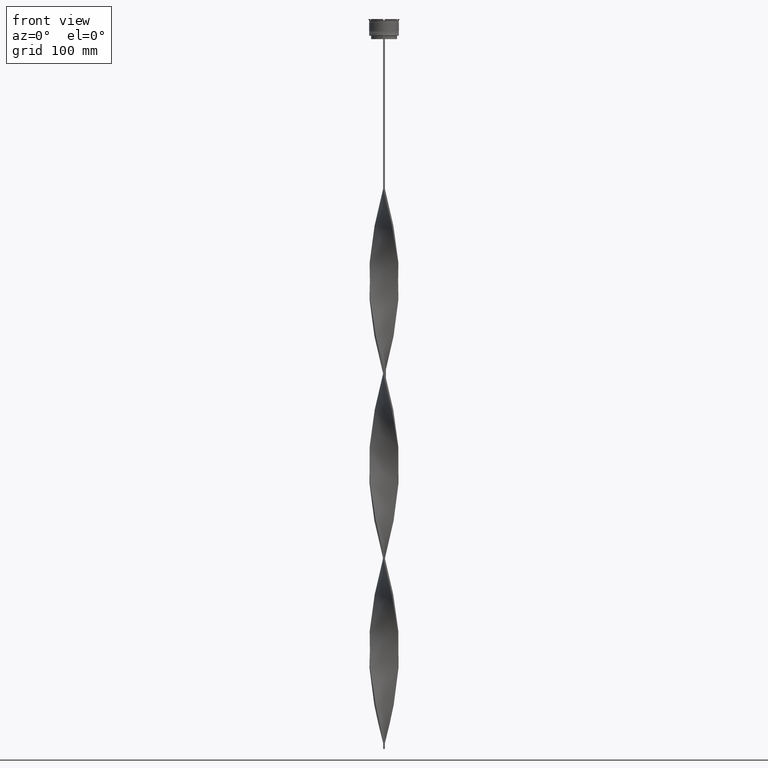
[diagram: clean part render]
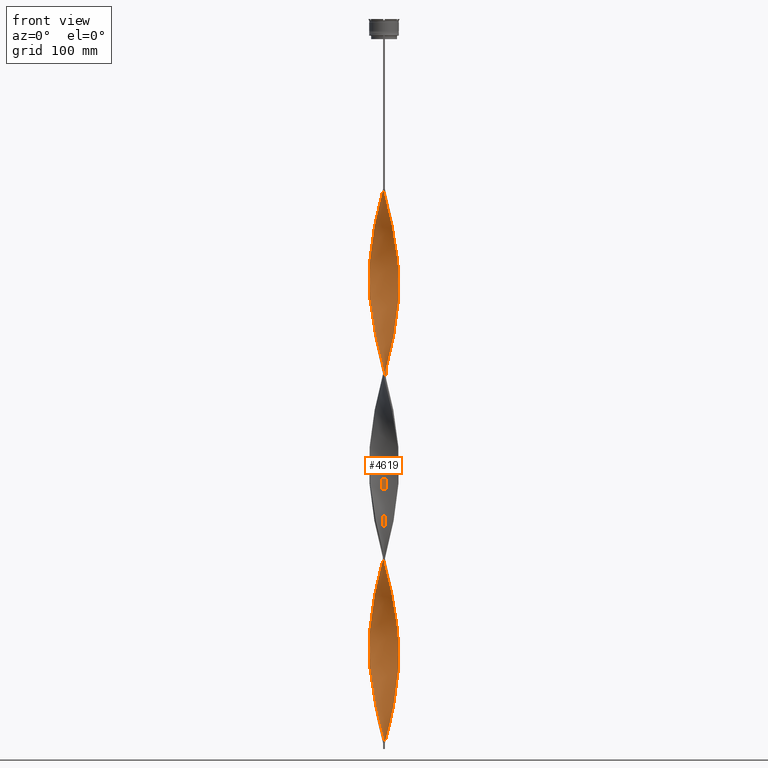
[diagram: same view with one face highlighted and labeled with its STEP entity id]
A machine part, front view. The second image highlights one B-rep face of the part: STEP entity #4619.
In plain terms, the highlighted face is a freeform B-spline surface patch.
Its self-contained STEP definition (entity closure, byte-faithful):
#1 = CARTESIAN_POINT ( 'NONE',  ( 10.57441756647771847, 6.753880147568762204, -562.4000000000000909 ) ) ;
#13 = CARTESIAN_POINT ( 'NONE',  ( -11.94434152831508911, -3.842643539664265084, -233.0933333333333906 ) ) ;
#14 = CARTESIAN_POINT ( 'NONE',  ( 12.41912662004790313, 1.605550994275044108, -540.6533333333334213 ) ) ;
#22 = CARTESIAN_POINT ( 'NONE',  ( 8.562581101809280781, 9.171445294657461389, -574.8266666666667106 ) ) ;
#31 = CARTESIAN_POINT ( 'NONE',  ( -12.33176776802354446, -2.315320201071886963, -226.8800000000000523 ) ) ;
#38 = CARTESIAN_POINT ( 'NONE',  ( 10.61346148680154933, 6.692356773673698633, -400.8533333333334099 ) ) ;
#40 = CARTESIAN_POINT ( 'NONE',  ( -1.536433340670622094, 12.45281399955976553, -146.1066666666667118 ) ) ;
#52 = CARTESIAN_POINT ( 'NONE',  ( 7.404526080593739401, -10.12947172560163800, -487.8400000000000887 ) ) ;
#60 = CARTESIAN_POINT ( 'NONE',  ( -10.57441756647771847, 6.753880147568762204, -189.6000000000000227 ) ) ;
#66 = CARTESIAN_POINT ( 'NONE',  ( -5.364690916238543217, -11.31514875612458226, -584.1466666666666470 ) ) ;
#67 = CARTESIAN_POINT ( 'NONE',  ( -7.954078399437124247, 9.671873490467490342, -174.0666666666666629 ) ) ;
#73 = CARTESIAN_POINT ( 'NONE',  ( 11.94434152831508911, -3.842643539664263752, -208.2400000000000659 ) ) ;
#80 = CARTESIAN_POINT ( 'NONE',  ( -5.364690916238543217, -11.31514875612458226, -273.4800000000000750 ) ) ;
#85 = CARTESIAN_POINT ( 'NONE',  ( -12.52013932661148665, 0.8242057753937841458, -525.1200000000001182 ) ) ;
#101 = CARTESIAN_POINT ( 'NONE',  ( -8.615698626491363754, -9.121564618826681681, -257.9466666666666583 ) ) ;
#106 = CARTESIAN_POINT ( 'NONE',  ( 0.03643334067062082432, 12.54718600044023979, -450.5600000000000023 ) ) ;
#115 = CARTESIAN_POINT ( 'NONE',  ( 4.652802097321417918, -11.65266650003840709, -164.7466666666667265 ) ) ;
#125 = CARTESIAN_POINT ( 'NONE',  ( 0.8225793935679449609, -12.49543369160420347, -149.2133333333333383 ) ) ;
#128 = CARTESIAN_POINT ( 'NONE',  ( 2.310751445539661830, -12.30743384125774575, -304.5466666666666811 ) ) ;
#137 = CARTESIAN_POINT ( 'NONE',  ( -10.10948352700888364, 7.389914939776779157, -497.1600000000000250 ) ) ;
#143 = CARTESIAN_POINT ( 'NONE',  ( 6.740552907874703514, -10.55355136890619860, -174.0666666666666629 ) ) ;
#153 = CARTESIAN_POINT ( 'NONE',  ( -7.954078399437124247, 9.671873490467490342, -484.7333333333333485 ) ) ;
#159 = CARTESIAN_POINT ( 'NONE',  ( -10.61346148680155110, -6.692356773673695081, -556.1866666666668380 ) ) ;
#165 = CARTESIAN_POINT ( 'NONE',  ( 10.99100368715144072, -6.000861433912922926, -198.9200000000000159 ) ) ;
#174 = CARTESIAN_POINT ( 'NONE',  ( 5.364690916238544105, 11.31514875612458226, -428.8133333333333894 ) ) ;
#175 = EDGE_CURVE ( 'NONE', #3188, #1463, #1265, .T. ) ;
#189 = CARTESIAN_POINT ( 'NONE',  ( -11.94434152831509088, 3.842643539664259755, -363.5733333333334372 ) ) ;
#201 = CARTESIAN_POINT ( 'NONE',  ( -12.52471466338928074, -0.7514828798033584834, -531.3333333333335986 ) ) ;
#221 = CARTESIAN_POINT ( 'NONE',  ( -8.562581101809284334, -9.171445294657461389, -419.4933333333333394 ) ) ;
#226 = CARTESIAN_POINT ( 'NONE',  ( 9.644549487540050592, 8.025949731984798774, -257.9466666666666583 ) ) ;
#241 = CARTESIAN_POINT ( 'NONE',  ( -8.615698626491365530, 9.121564618826679904, -338.7200000000000273 ) ) ;
#247 = CARTESIAN_POINT ( 'NONE',  ( -9.103565294674663022, -8.598697513321132746, -416.3866666666666561 ) ) ;
#261 = CARTESIAN_POINT ( 'NONE',  ( -5.364690916238544993, 11.31514875612458226, -323.1866666666667243 ) ) ;
#270 = CARTESIAN_POINT ( 'NONE',  ( -9.690996458280336512, 7.969804989054249056, -344.9333333333334508 ) ) ;
#279 = CARTESIAN_POINT ( 'NONE',  ( -6.679150936304338870, 10.59251824497200900, -167.8533333333333530 ) ) ;
#289 = CARTESIAN_POINT ( 'NONE',  ( -4.585052370405607647, -11.67949051451277320, -438.1333333333334394 ) ) ;
#295 = CARTESIAN_POINT ( 'NONE',  ( -12.41912662004790313, 1.605550994275040111, -522.0133333333334349 ) ) ;
#296 = CARTESIAN_POINT ( 'NONE',  ( -8.615698626491365530, 9.121564618826679904, -338.7200000000000273 ) ) ;
#300 = VERTEX_POINT ( 'NONE', #578 ) ;
#311 = CARTESIAN_POINT ( 'NONE',  ( -12.31811391348432316, 2.386896213156299407, -208.2400000000000659 ) ) ;
#312 = CARTESIAN_POINT ( 'NONE',  ( -4.585052370405615640, 11.67949051451277143, -158.5333333333333883 ) ) ;
#318 = CARTESIAN_POINT ( 'NONE',  ( 12.52013932661148488, -0.8242057753937777065, -369.7866666666666902 ) ) ;
#320 = CARTESIAN_POINT ( 'NONE',  ( 1.536433340670619208, 12.45281399955976553, -295.2266666666667447 ) ) ;
#334 = CARTESIAN_POINT ( 'NONE',  ( 12.11996919947063134, -3.149420042465480130, -360.4666666666666970 ) ) ;
#335 = CARTESIAN_POINT ( 'NONE',  ( -1.536433340670620762, -12.45281399955976553, -450.5600000000000023 ) ) ;
#342 = CARTESIAN_POINT ( 'NONE',  ( -3.085069550408702010, -12.16205368295573130, -444.3466666666668061 ) ) ;
#349 = CARTESIAN_POINT ( 'NONE',  ( -0.7499999999999997780, 12.50000000000000000, -143.0000000000000284 ) ) ;
#357 = CARTESIAN_POINT ( 'NONE',  ( -11.65644370790820794, -4.576004816908209705, -236.2000000000000171 ) ) ;
#358 = CARTESIAN_POINT ( 'NONE',  ( -2.310751445539655613, -12.30743384125774753, -447.4533333333333758 ) ) ;
#371 = CARTESIAN_POINT ( 'NONE',  ( 12.11996919947063134, 3.149420042465480130, -546.8666666666666742 ) ) ;
#380 = CARTESIAN_POINT ( 'NONE',  ( 0.7499999999999957812, 12.50000000000000000, -609.0000000000000000 ) ) ;
#383 = CARTESIAN_POINT ( 'NONE',  ( -0.8225793935679430735, -12.49543369160420347, -292.1200000000000614 ) ) ;
#385 = CARTESIAN_POINT ( 'NONE',  ( 11.36854588750133388, -5.309366094152150772, -512.6933333333333849 ) ) ;
#402 = CARTESIAN_POINT ( 'NONE',  ( -3.904224544142283815, -11.89829948811665261, -279.6933333333333280 ) ) ;
#407 = CARTESIAN_POINT ( 'NONE',  ( 2.310751445539661830, -12.30743384125774575, -304.5466666666666811 ) ) ;
#408 = CARTESIAN_POINT ( 'NONE',  ( 10.95596916500943685, 6.064588993110950454, -559.2933333333334076 ) ) ;
#416 = CARTESIAN_POINT ( 'NONE',  ( 6.076579735155671180, -10.97763101221075743, -481.6266666666667788 ) ) ;
#424 = CARTESIAN_POINT ( 'NONE',  ( -9.153347542385850133, -8.545684803940464036, -254.8400000000000034 ) ) ;
#431 = CARTESIAN_POINT ( 'NONE',  ( -6.012726175543712692, 11.01273480366649871, -475.4133333333333553 ) ) ;
#433 = CARTESIAN_POINT ( 'NONE',  ( -9.103565294674670128, 8.598697513321129193, -180.2800000000000296 ) ) ;
#443 = CARTESIAN_POINT ( 'NONE',  ( 12.42824121570641083, -1.533401540437619781, -528.2266666666666879 ) ) ;
#451 = CARTESIAN_POINT ( 'NONE',  ( -12.41912662004790313, 1.605550994275040111, -211.3466666666666924 ) ) ;
#457 = CARTESIAN_POINT ( 'NONE',  ( -10.57441756647771847, 6.753880147568762204, -500.2666666666666515 ) ) ;
#463 = CARTESIAN_POINT ( 'NONE',  ( 12.31811391348432316, 2.386896213156300295, -233.0933333333333906 ) ) ;
#470 = CARTESIAN_POINT ( 'NONE',  ( 6.679150936304339758, -10.59251824497200900, -323.1866666666667243 ) ) ;
#476 = CARTESIAN_POINT ( 'NONE',  ( -3.155646990963153264, -12.14393247619489813, -593.4666666666666970 ) ) ;
#492 = CARTESIAN_POINT ( 'NONE',  ( -12.31811391348432316, 2.386896213156299407, -208.2400000000000659 ) ) ;
#498 = CARTESIAN_POINT ( 'NONE',  ( -8.615698626491363754, -9.121564618826681681, -568.6133333333333439 ) ) ;
#506 = CARTESIAN_POINT ( 'NONE',  ( -0.7499999999999997780, -12.50000000000000000, -143.0000000000000284 ) ) ;
#518 = CARTESIAN_POINT ( 'NONE',  ( 4.652802097321417918, -11.65266650003840709, -164.7466666666666981 ) ) ;
#521 = CARTESIAN_POINT ( 'NONE',  ( 12.33176776802354624, 2.315320201071885187, -382.2133333333334235 ) ) ;
#530 = CARTESIAN_POINT ( 'NONE',  ( -7.345575697064967713, 10.17230168627752107, -481.6266666666667788 ) ) ;
#543 = CARTESIAN_POINT ( 'NONE',  ( 12.11996919947063134, 3.149420042465480130, -236.2000000000000171 ) ) ;
#546 = CARTESIAN_POINT ( 'NONE',  ( 8.615698626491365530, 9.121564618826679904, -413.2800000000000864 ) ) ;
#558 = CARTESIAN_POINT ( 'NONE',  ( -0.03643334067062192066, 12.54718600044023979, -301.4400000000000546 ) ) ;
#565 = CARTESIAN_POINT ( 'NONE',  ( 8.615698626491365530, -9.121564618826679904, -183.3866666666666845 ) ) ;
#568 = CARTESIAN_POINT ( 'NONE',  ( -12.31811391348432316, 2.386896213156299407, -518.9066666666666379 ) ) ;
#578 = CARTESIAN_POINT ( 'NONE',  ( 0.7500000000000037748, -12.50000000000000000, -609.0000000000000000 ) ) ;
#582 = CARTESIAN_POINT ( 'NONE',  ( 11.62967262449904915, 4.643620855213894671, -242.4133333333333553 ) ) ;
#590 = CARTESIAN_POINT ( 'NONE',  ( 5.364690916238544105, -11.31514875612458226, -167.8533333333333530 ) ) ;
#611 = CARTESIAN_POINT ( 'NONE',  ( 0.7499999999999957812, 12.50000000000000000, -298.3333333333333144 ) ) ;
#616 = CARTESIAN_POINT ( 'NONE',  ( 0.03643334067062224679, -12.54718600044023979, -456.7733333333334258 ) ) ;
#632 = CARTESIAN_POINT ( 'NONE',  ( -12.13805464816931767, 3.078981870368074247, -366.6800000000000068 ) ) ;
#638 = CARTESIAN_POINT ( 'NONE',  ( -4.652802097321417030, 11.65266650003840709, -320.0800000000000978 ) ) ;
#652 = CARTESIAN_POINT ( 'NONE',  ( 3.085069550408700678, 12.16205368295573130, -289.0133333333333212 ) ) ;
#658 = CARTESIAN_POINT ( 'NONE',  ( -9.644549487540052368, 8.025949731984796998, -494.0533333333333985 ) ) ;
#660 = CARTESIAN_POINT ( 'NONE',  ( -11.36854588750133388, 5.309366094152150772, -357.3600000000000705 ) ) ;
#680 = CARTESIAN_POINT ( 'NONE',  ( 4.585052370405619193, -11.67949051451277143, -313.8666666666666742 ) ) ;
#681 = CARTESIAN_POINT ( 'NONE',  ( -2.310751445539661386, 12.30743384125774575, -149.2133333333333383 ) ) ;
#689 = CARTESIAN_POINT ( 'NONE',  ( -9.103565294674670128, 8.598697513321129193, -490.9466666666667152 ) ) ;
#690 = EDGE_CURVE ( 'NONE', #3188, #2083, #3620, .T. ) ;
#692 = CARTESIAN_POINT ( 'NONE',  ( -11.62967262449904915, -4.643620855213893783, -397.7466666666666697 ) ) ;
#704 = CARTESIAN_POINT ( 'NONE',  ( 7.345575697064968601, -10.17230168627751929, -326.2933333333333508 ) ) ;
#705 = CARTESIAN_POINT ( 'NONE',  ( 12.52013932661148488, 0.8242057753937857001, -537.5466666666667379 ) ) ;
#711 = CARTESIAN_POINT ( 'NONE',  ( 0.7500000000000037748, -12.50000000000000000, -609.0000000000000000 ) ) ;
#713 = CARTESIAN_POINT ( 'NONE',  ( -12.52013932661148488, -0.8242057753937839237, -382.2133333333334235 ) ) ;
#725 = CARTESIAN_POINT ( 'NONE',  ( -3.155646990963153264, -12.14393247619489813, -282.8000000000000682 ) ) ;
#726 = CARTESIAN_POINT ( 'NONE',  ( 7.404526080593739401, -10.12947172560163800, -487.8400000000000887 ) ) ;
#732 = CARTESIAN_POINT ( 'NONE',  ( 6.740552907874703514, -10.55355136890619860, -484.7333333333333485 ) ) ;
#749 = CARTESIAN_POINT ( 'NONE',  ( 12.52471466338928074, 0.7514828798033541535, -376.0000000000000568 ) ) ;
#750 = CARTESIAN_POINT ( 'NONE',  ( 10.99100368715144072, -6.000861433912922926, -509.5866666666666447 ) ) ;
#764 = CARTESIAN_POINT ( 'NONE',  ( 11.36854588750133388, -5.309366094152150772, -512.6933333333334986 ) ) ;
#770 = CARTESIAN_POINT ( 'NONE',  ( -10.99100368715144072, -6.000861433912923815, -242.4133333333333553 ) ) ;
#776 = CARTESIAN_POINT ( 'NONE',  ( 10.99100368715144072, 6.000861433912922926, -397.7466666666666697 ) ) ;
#777 = CARTESIAN_POINT ( 'NONE',  ( 12.31811391348432316, 2.386896213156300295, -543.7599999999999909 ) ) ;
#786 = CARTESIAN_POINT ( 'NONE',  ( 11.33752076354115701, 5.375297838653134264, -556.1866666666668380 ) ) ;
#792 = CARTESIAN_POINT ( 'NONE',  ( -7.954078399437124247, 9.671873490467490342, -174.0666666666666629 ) ) ;
#798 = CARTESIAN_POINT ( 'NONE',  ( -0.8225793935679430735, -12.49543369160420347, -602.7866666666667470 ) ) ;
#799 = CARTESIAN_POINT ( 'NONE',  ( -12.11996919947063134, 3.149420042465478353, -205.1333333333333542 ) ) ;
#806 = CARTESIAN_POINT ( 'NONE',  ( 11.94434152831508911, -3.842643539664263752, -518.9066666666666379 ) ) ;
#814 = CARTESIAN_POINT ( 'NONE',  ( -0.8225793935679430735, -12.49543369160420347, -292.1200000000000614 ) ) ;
#820 = CARTESIAN_POINT ( 'NONE',  ( 9.153347542385844804, 8.545684803940465812, -410.1733333333334031 ) ) ;
#828 = CARTESIAN_POINT ( 'NONE',  ( 10.61346148680155466, -6.692356773673691528, -195.8133333333333610 ) ) ;
#833 = CARTESIAN_POINT ( 'NONE',  ( 3.904224544142286479, -11.89829948811665083, -472.3066666666667288 ) ) ;
#842 = CARTESIAN_POINT ( 'NONE',  ( 3.835060960407161268, -11.92077209873424870, -310.7600000000000477 ) ) ;
#849 = CARTESIAN_POINT ( 'NONE',  ( -6.740552907874705291, -10.55355136890619683, -577.9333333333333940 ) ) ;
#860 = CARTESIAN_POINT ( 'NONE',  ( 7.954078399437126023, 9.671873490467488566, -267.2666666666667084 ) ) ;
#863 = CARTESIAN_POINT ( 'NONE',  ( 11.92182448545694129, -3.911943871774655079, -357.3600000000000705 ) ) ;
#871 = CARTESIAN_POINT ( 'NONE',  ( 4.652802097321410812, 11.65266650003840887, -431.9200000000000728 ) ) ;
#881 = CARTESIAN_POINT ( 'NONE',  ( 7.404526080593739401, -10.12947172560163800, -177.1733333333333462 ) ) ;
#884 = CARTESIAN_POINT ( 'NONE',  ( -12.11996919947063134, 3.149420042465478353, -515.8000000000000682 ) ) ;
#892 = CARTESIAN_POINT ( 'NONE',  ( 6.076579735155664963, 10.97763101221075921, -425.7066666666667629 ) ) ;
#901 = CARTESIAN_POINT ( 'NONE',  ( 10.15222897254094292, -7.331080881363969404, -192.7066666666667061 ) ) ;
#910 = CARTESIAN_POINT ( 'NONE',  ( 12.52242699500038015, 0.03636144779521405246, -223.7733333333333405 ) ) ;
#913 = CARTESIAN_POINT ( 'NONE',  ( 6.076579735155665851, 10.97763101221075743, -425.7066666666667061 ) ) ;
#929 = CARTESIAN_POINT ( 'NONE',  ( 11.65644370790820794, -4.576004816908208817, -205.1333333333333542 ) ) ;
#937 = CARTESIAN_POINT ( 'NONE',  ( -12.52013932661148488, 0.8242057753937841458, -525.1200000000001182 ) ) ;
#950 = CARTESIAN_POINT ( 'NONE',  ( -12.33176776802354802, 2.315320201071879413, -369.7866666666666333 ) ) ;
#957 = CARTESIAN_POINT ( 'NONE',  ( 12.42824121570641083, -1.533401540437619781, -217.5600000000000307 ) ) ;
#960 = CARTESIAN_POINT ( 'NONE',  ( 4.652802097321410812, 11.65266650003840887, -431.9200000000000728 ) ) ;
#974 = CARTESIAN_POINT ( 'NONE',  ( 3.835060960407158603, 11.92077209873424870, -285.9066666666666947 ) ) ;
#983 = CARTESIAN_POINT ( 'NONE',  ( -0.7499999999999997780, -12.50000000000000000, -453.6666666666667425 ) ) ;
#1002 = CARTESIAN_POINT ( 'NONE',  ( -11.65644370790820794, 4.576004816908209705, -360.4666666666666970 ) ) ;
#1007 = CARTESIAN_POINT ( 'NONE',  ( 0.7499999999999957812, 12.50000000000000000, -298.3333333333333144 ) ) ;
#1023 = CARTESIAN_POINT ( 'NONE',  ( -11.92182448545693774, -3.911943871774660408, -394.6399999999999864 ) ) ;
#1029 = CARTESIAN_POINT ( 'NONE',  ( -12.42824121570641083, 1.533401540437618671, -372.8933333333333735 ) ) ;
#1045 = CARTESIAN_POINT ( 'NONE',  ( -12.13805464816931412, -3.078981870368076912, -229.9866666666666788 ) ) ;
#1046 = CARTESIAN_POINT ( 'NONE',  ( 2.310751445539659610, 12.30743384125774575, -292.1200000000000614 ) ) ;
#1052 = CARTESIAN_POINT ( 'NONE',  ( -3.835060960407158159, 11.92077209873424870, -466.0933333333333621 ) ) ;
#1055 = CARTESIAN_POINT ( 'NONE',  ( -6.076579735155672068, 10.97763101221075743, -326.2933333333333508 ) ) ;
#1073 = CARTESIAN_POINT ( 'NONE',  ( 6.679150936304339758, -10.59251824497200900, -323.1866666666667243 ) ) ;
#1074 = CARTESIAN_POINT ( 'NONE',  ( -6.012726175543712692, 11.01273480366649871, -164.7466666666667265 ) ) ;
#1086 = CARTESIAN_POINT ( 'NONE',  ( 5.298889272974660614, 11.34611265908963595, -279.6933333333333280 ) ) ;
#1099 = CARTESIAN_POINT ( 'NONE',  ( 1.536433340670621872, -12.45281399955976553, -301.4400000000000546 ) ) ;
#1100 = CARTESIAN_POINT ( 'NONE',  ( 9.644549487540050592, 8.025949731984798774, -568.6133333333333439 ) ) ;
#1108 = CARTESIAN_POINT ( 'NONE',  ( 12.52471466338928074, -0.7514828798033543755, -531.3333333333335986 ) ) ;
#1121 = CARTESIAN_POINT ( 'NONE',  ( 12.52013932661148665, -0.8242057753937777065, -369.7866666666666333 ) ) ;
#1122 = CARTESIAN_POINT ( 'NONE',  ( -3.835060960407154163, -11.92077209873424870, -441.2400000000000091 ) ) ;
#1140 = CARTESIAN_POINT ( 'NONE',  ( 11.62967262449905270, -4.643620855213887566, -354.2533333333333871 ) ) ;
#1150 = CARTESIAN_POINT ( 'NONE',  ( 11.94434152831508911, 3.842643539664265973, -388.4266666666667334 ) ) ;
#1151 = CARTESIAN_POINT ( 'NONE',  ( 10.10948352700888364, 7.389914939776780933, -565.5066666666666606 ) ) ;
#1159 = CARTESIAN_POINT ( 'NONE',  ( -3.904224544142283815, -11.89829948811665261, -590.3600000000000136 ) ) ;
#1160 = CARTESIAN_POINT ( 'NONE',  ( 12.52242699500038015, 0.03636144779521405246, -534.4400000000000546 ) ) ;
#1166 = CARTESIAN_POINT ( 'NONE',  ( -12.52013932661148488, 0.8242057753937841458, -214.4533333333333758 ) ) ;
#1172 = CARTESIAN_POINT ( 'NONE',  ( -11.36854588750133388, -5.309366094152152549, -549.9733333333333576 ) ) ;
#1173 = CARTESIAN_POINT ( 'NONE',  ( 11.33752076354115701, 5.375297838653134264, -556.1866666666668380 ) ) ;
#1180 = CARTESIAN_POINT ( 'NONE',  ( 9.103565294674666575, 8.598697513321130970, -571.7200000000000273 ) ) ;
#1186 = CARTESIAN_POINT ( 'NONE',  ( -12.13805464816931412, -3.078981870368076912, -229.9866666666666788 ) ) ;
#1191 = CARTESIAN_POINT ( 'NONE',  ( -12.52471466338928074, -0.7514828798033584834, -531.3333333333334849 ) ) ;
#1200 = CARTESIAN_POINT ( 'NONE',  ( 5.298889272974660614, 11.34611265908963595, -590.3600000000000136 ) ) ;
#1207 = CARTESIAN_POINT ( 'NONE',  ( -12.42824121570641083, -1.533401540437621113, -223.7733333333333405 ) ) ;
#1213 = CARTESIAN_POINT ( 'NONE',  ( -11.94434152831508911, -3.842643539664265084, -543.7599999999999909 ) ) ;
#1234 = CARTESIAN_POINT ( 'NONE',  ( 10.10948352700888364, -7.389914939776777381, -341.8266666666667106 ) ) ;
#1240 = CARTESIAN_POINT ( 'NONE',  ( -0.7499999999999997780, 12.50000000000000000, -453.6666666666667425 ) ) ;
#1247 =( BOUNDED_CURVE ( )  B_SPLINE_CURVE ( 2, ( #349, #4117, #3360, #4851, #2985, #4478, #3756, #2133, #279, #2664, #792, #2707, #4167, #2314, #1982, #60, #4188, #1914, #2290, #3781, #2684, #492, #451, #1166, #2637, #1961, #1207, #31, #1186, #3870, #3476, #3830, #770, #3802, #3501, #4530, #424, #101, #3431, #1940, #4604, #3455, #80, #1890, #402, #4554, #1552, #3062, #814, #4213, #1573, #3082, #128, #4577, #842, #2340, #3850, #3406, #470, #1526, #1623, #1594, #3107, #3134, #1234, #2735, #3037, #4236, #1140, #863, #2365, #4146, #2267, #318, #4790, #3673, #2180, #521, #1644, #3967, #3552, #3896, #2013, #3920, #2553, #3941, #4417, #546, #4061, #1786, #2418, #913, #174, #960, #3203, #2829, #3576, #2033, #1666, #2462, #2779, #3530, #3175, #1696, #1052, #4670, #2806, #4304, #2757, #2056, #153, #4699, #689, #658, #2441, #1328, #4327, #3699, #1304, #2149, #884, #568, #295, #937, #3296, #201, #2921, #1417, #3154, #4647, #1254, #1809, #4628, #4258, #2389, #1277, #4281, #2626, #3025, #3053, #1489, #3397, #4133, #2260, #1159, #4084, #2303, #4864, #2282, #2582, #711 ),
 .UNSPECIFIED., .F., .T. ) 
 B_SPLINE_CURVE_WITH_KNOTS ( ( 3, 2, 2, 2, 2, 2, 2, 2, 2, 2, 2, 2, 2, 2, 2, 2, 2, 2, 2, 2, 2, 2, 2, 2, 2, 2, 2, 2, 2, 2, 2, 2, 2, 2, 2, 2, 2, 2, 2, 2, 2, 2, 2, 2, 2, 2, 2, 2, 2, 2, 2, 2, 2, 2, 2, 2, 2, 2, 2, 2, 2, 2, 2, 2, 2, 2, 2, 2, 2, 2, 2, 2, 2, 2, 2, 3 ),
 ( 0.000000000000000000, 0.01000000000000000021, 0.02000000000000000042, 0.02999999999999999889, 0.04000000000000000083, 0.05000000000000000971, 0.05999999999999999778, 0.07000000000000000666, 0.08000000000000000167, 0.09000000000000001055, 0.1000000000000000194, 0.1100000000000000006, 0.1199999999999999956, 0.1300000000000000044, 0.1400000000000000133, 0.1499999999999999944, 0.1600000000000000033, 0.1700000000000000122, 0.1800000000000000211, 0.1900000000000000300, 0.2000000000000000389, 0.2099999999999999922, 0.2200000000000000011, 0.2300000000000000100, 0.2399999999999999911, 0.2500000000000000000, 0.2600000000000000089, 0.2700000000000000178, 0.2800000000000000266, 0.2899999999999999800, 0.2999999999999999889, 0.3099999999999999978, 0.3200000000000000067, 0.3300000000000000155, 0.3400000000000000244, 0.3499999999999999223, 0.3600000000000000422, 0.3699999999999999400, 0.3800000000000000600, 0.3899999999999999578, 0.4000000000000000777, 0.4099999999999999756, 0.4199999999999999845, 0.4299999999999999933, 0.4400000000000000022, 0.4500000000000000111, 0.4600000000000000200, 0.4699999999999999734, 0.4799999999999999822, 0.4899999999999999911, 0.5000000000000000000, 0.5100000000000000089, 0.5200000000000000178, 0.5300000000000000266, 0.5400000000000000355, 0.5500000000000000444, 0.5600000000000000533, 0.5699999999999999512, 0.5799999999999999600, 0.5899999999999999689, 0.5999999999999999778, 0.6099999999999999867, 0.6199999999999999956, 0.6300000000000000044, 0.6400000000000000133, 0.6500000000000000222, 0.6600000000000000311, 0.6700000000000000400, 0.6800000000000000488, 0.6899999999999999467, 0.6999999999999998446, 0.7099999999999999645, 0.7200000000000000844, 0.7299999999999999822, 0.7399999999999998801, 0.7500000000000000000 ),
 .UNSPECIFIED. ) 
 CURVE ( )  GEOMETRIC_REPRESENTATION_ITEM ( )  RATIONAL_B_SPLINE_CURVE ( ( 1.000000000000000000, 0.9980267284282715590, 1.000000000000000000, 0.9980267284282715590, 1.000000000000000000, 0.9980267284282715590, 1.000000000000000000, 0.9980267284282715590, 1.000000000000000000, 0.9980267284282715590, 1.000000000000000000, 0.9980267284282715590, 1.000000000000000000, 0.9980267284282715590, 1.000000000000000000, 0.9980267284282715590, 1.000000000000000000, 0.9980267284282715590, 1.000000000000000000, 0.9980267284282715590, 1.000000000000000000, 0.9980267284282715590, 1.000000000000000000, 0.9980267284282715590, 1.000000000000000000, 0.9980267284282715590, 1.000000000000000000, 0.9980267284282715590, 1.000000000000000000, 0.9980267284282715590, 1.000000000000000000, 0.9980267284282715590, 1.000000000000000000, 0.9980267284282715590, 1.000000000000000000, 0.9980267284282715590, 1.000000000000000000, 0.9980267284282715590, 1.000000000000000000, 0.9980267284282715590, 1.000000000000000000, 0.9980267284282715590, 1.000000000000000000, 0.9980267284282715590, 1.000000000000000000, 0.9980267284282715590, 1.000000000000000000, 0.9980267284282715590, 1.000000000000000000, 0.9980267284282715590, 1.000000000000000000, 0.9980267284282715590, 1.000000000000000000, 0.9980267284282715590, 1.000000000000000000, 0.9980267284282715590, 1.000000000000000000, 0.9980267284282715590, 1.000000000000000000, 0.9980267284282715590, 1.000000000000000000, 0.9980267284282715590, 1.000000000000000000, 0.9980267284282715590, 1.000000000000000000, 0.9980267284282715590, 1.000000000000000000, 0.9980267284282715590, 1.000000000000000000, 0.9980267284282715590, 1.000000000000000000, 0.9980267284282715590, 1.000000000000000000, 0.9980267284282715590, 1.000000000000000000, 0.9980267284282715590, 1.000000000000000000, 0.9980267284282715590, 1.000000000000000000, 0.9980267284282715590, 1.000000000000000000, 0.9980267284282715590, 1.000000000000000000, 0.9980267284282715590, 1.000000000000000000, 0.9980267284282715590, 1.000000000000000000, 0.9980267284282715590, 1.000000000000000000, 0.9980267284282715590, 1.000000000000000000, 0.9980267284282715590, 1.000000000000000000, 0.9980267284282715590, 1.000000000000000000, 0.9980267284282715590, 1.000000000000000000, 0.9980267284282715590, 1.000000000000000000, 0.9980267284282715590, 1.000000000000000000, 0.9980267284282715590, 1.000000000000000000, 0.9980267284282715590, 1.000000000000000000, 0.9980267284282715590, 1.000000000000000000, 0.9980267284282715590, 1.000000000000000000, 0.9980267284282715590, 1.000000000000000000, 0.9980267284282715590, 1.000000000000000000, 0.9980267284282715590, 1.000000000000000000, 0.9980267284282715590, 1.000000000000000000, 0.9980267284282715590, 1.000000000000000000, 0.9980267284282715590, 1.000000000000000000, 0.9980267284282715590, 1.000000000000000000, 0.9980267284282715590, 1.000000000000000000, 0.9980267284282715590, 1.000000000000000000, 0.9980267284282715590, 1.000000000000000000, 0.9980267284282715590, 1.000000000000000000, 0.9980267284282715590, 1.000000000000000000, 0.9980267284282715590, 1.000000000000000000, 0.9980267284282715590, 1.000000000000000000, 0.9980267284282715590, 1.000000000000000000, 0.9980267284282715590, 1.000000000000000000, 0.9980267284282715590, 1.000000000000000000, 0.9980267284282715590, 1.000000000000000000, 0.9980267284282715590, 1.000000000000000000, 0.9980267284282715590, 1.000000000000000000, 0.9980267284282715590, 1.000000000000000000 ) ) 
 REPRESENTATION_ITEM ( '' )  );
#1254 = CARTESIAN_POINT ( 'NONE',  ( -11.65644370790820794, -4.576004816908209705, -546.8666666666666742 ) ) ;
#1262 = CARTESIAN_POINT ( 'NONE',  ( 0.8225793935679390767, 12.49543369160420170, -447.4533333333333758 ) ) ;
#1265 = LINE ( 'NONE', #2402, #3809 ) ;
#1269 = CARTESIAN_POINT ( 'NONE',  ( 8.010112353542551134, -9.625518172214160728, -180.2800000000000296 ) ) ;
#1274 = CARTESIAN_POINT ( 'NONE',  ( 10.99100368715144072, -6.000861433912922926, -198.9200000000000159 ) ) ;
#1277 = CARTESIAN_POINT ( 'NONE',  ( -9.690996458280338288, -7.969804989054245503, -562.4000000000000909 ) ) ;
#1301 = CARTESIAN_POINT ( 'NONE',  ( 11.92182448545694129, 3.911943871774656856, -239.3066666666667288 ) ) ;
#1304 = CARTESIAN_POINT ( 'NONE',  ( -11.62967262449904915, 4.643620855213893783, -509.5866666666666447 ) ) ;
#1318 = CARTESIAN_POINT ( 'NONE',  ( 8.562581101809282558, 9.171445294657461389, -264.1600000000000819 ) ) ;
#1325 = CARTESIAN_POINT ( 'NONE',  ( 10.57441756647771847, 6.753880147568762204, -251.7333333333334338 ) ) ;
#1328 = CARTESIAN_POINT ( 'NONE',  ( -10.57441756647771847, 6.753880147568762204, -500.2666666666666515 ) ) ;
#1341 = CARTESIAN_POINT ( 'NONE',  ( -6.012726175543707363, -11.01273480366650048, -431.9200000000000728 ) ) ;
#1347 = CARTESIAN_POINT ( 'NONE',  ( -10.99100368715144427, 6.000861433912916709, -354.2533333333333871 ) ) ;
#1361 = CARTESIAN_POINT ( 'NONE',  ( -6.076579735155671180, 10.97763101221075743, -326.2933333333333508 ) ) ;
#1370 = CARTESIAN_POINT ( 'NONE',  ( -6.740552907874707067, 10.55355136890619505, -329.4000000000000341 ) ) ;
#1389 = CARTESIAN_POINT ( 'NONE',  ( -12.52242699500038015, -0.03636144779521806314, -379.1066666666666833 ) ) ;
#1394 = CARTESIAN_POINT ( 'NONE',  ( -10.15222897254094470, 7.331080881363965851, -348.0400000000000205 ) ) ;
#1411 = CARTESIAN_POINT ( 'NONE',  ( -1.608725446465269826, 12.44368138276816360, -307.6533333333334213 ) ) ;
#1417 = CARTESIAN_POINT ( 'NONE',  ( -12.33176776802354446, -2.315320201071886963, -537.5466666666667379 ) ) ;
#1419 = CARTESIAN_POINT ( 'NONE',  ( -3.155646990963159926, 12.14393247619489813, -313.8666666666666742 ) ) ;
#1432 = CARTESIAN_POINT ( 'NONE',  ( -12.42824121570641083, -1.533401540437621113, -223.7733333333333405 ) ) ;
#1433 = CARTESIAN_POINT ( 'NONE',  ( 6.076579735155670292, -10.97763101221075921, -481.6266666666667788 ) ) ;
#1442 = CARTESIAN_POINT ( 'NONE',  ( -10.10948352700888186, -7.389914939776783598, -410.1733333333334031 ) ) ;
#1460 = CARTESIAN_POINT ( 'NONE',  ( 12.52242699500038015, -0.03636144779521166548, -372.8933333333333735 ) ) ;
#1461 = CARTESIAN_POINT ( 'NONE',  ( 11.65644370790820794, -4.576004816908208817, -515.8000000000000682 ) ) ;
#1463 = VERTEX_POINT ( 'NONE', #3653 ) ;
#1470 = CARTESIAN_POINT ( 'NONE',  ( 0.7499999999999957812, 12.50000000000000000, -609.0000000000000000 ) ) ;
#1480 = CARTESIAN_POINT ( 'NONE',  ( 10.57441756647771669, -6.753880147568765757, -344.9333333333334508 ) ) ;
#1481 = CARTESIAN_POINT ( 'NONE',  ( 3.085069550408700678, 12.16205368295573130, -599.6799999999999500 ) ) ;
#1489 = CARTESIAN_POINT ( 'NONE',  ( -6.740552907874705291, -10.55355136890619683, -577.9333333333333940 ) ) ;
#1491 = CARTESIAN_POINT ( 'NONE',  ( 8.010112353542551134, -9.625518172214160728, -490.9466666666667152 ) ) ;
#1506 = CARTESIAN_POINT ( 'NONE',  ( 7.954078399437126912, -9.671873490467486789, -329.4000000000000341 ) ) ;
#1507 = CARTESIAN_POINT ( 'NONE',  ( 10.57441756647771847, 6.753880147568762204, -562.4000000000000909 ) ) ;
#1526 = CARTESIAN_POINT ( 'NONE',  ( 7.345575697064968601, -10.17230168627751929, -326.2933333333333508 ) ) ;
#1535 = CARTESIAN_POINT ( 'NONE',  ( -12.41912662004790313, 1.605550994275040111, -211.3466666666666924 ) ) ;
#1536 = CARTESIAN_POINT ( 'NONE',  ( 12.11996919947063134, 3.149420042465480130, -546.8666666666666742 ) ) ;
#1545 = CARTESIAN_POINT ( 'NONE',  ( 5.364690916238544105, -11.31514875612458226, -478.5200000000000387 ) ) ;
#1552 = CARTESIAN_POINT ( 'NONE',  ( -2.382186218714212433, -12.29380692948152820, -285.9066666666666947 ) ) ;
#1558 = CARTESIAN_POINT ( 'NONE',  ( -3.904224544142283815, -11.89829948811665261, -590.3600000000000136 ) ) ;
#1559 = CARTESIAN_POINT ( 'NONE',  ( -8.562581101809286110, 9.171445294657459613, -177.1733333333333462 ) ) ;
#1566 = FACE_OUTER_BOUND ( 'NONE', #4795, .T. ) ;
#1573 = CARTESIAN_POINT ( 'NONE',  ( 0.7500000000000037748, -12.50000000000000000, -298.3333333333333144 ) ) ;
#1579 = CARTESIAN_POINT ( 'NONE',  ( 6.740552907874696409, 10.55355136890620216, -422.6000000000000227 ) ) ;
#1586 = CARTESIAN_POINT ( 'NONE',  ( 9.690996458280338288, -7.969804989054246391, -189.6000000000000227 ) ) ;
#1594 = CARTESIAN_POINT ( 'NONE',  ( 8.562581101809287887, -9.171445294657457836, -332.5066666666667743 ) ) ;
#1600 = CARTESIAN_POINT ( 'NONE',  ( -11.92182448545694129, 3.911943871774655523, -512.6933333333333849 ) ) ;
#1623 = CARTESIAN_POINT ( 'NONE',  ( 7.954078399437126912, -9.671873490467486789, -329.4000000000000341 ) ) ;
#1629 = CARTESIAN_POINT ( 'NONE',  ( -8.010112353542547581, -9.625518172214162504, -571.7200000000000273 ) ) ;
#1641 = CARTESIAN_POINT ( 'NONE',  ( 8.010112353542551134, -9.625518172214160728, -180.2800000000000296 ) ) ;
#1644 = CARTESIAN_POINT ( 'NONE',  ( 12.13805464816931412, 3.078981870368080909, -385.3199999999999932 ) ) ;
#1666 = CARTESIAN_POINT ( 'NONE',  ( 0.8225793935679390767, 12.49543369160420170, -447.4533333333333758 ) ) ;
#1683 = CARTESIAN_POINT ( 'NONE',  ( -12.52471466338928074, 0.7514828798033587054, -376.0000000000000568 ) ) ;
#1693 = CARTESIAN_POINT ( 'NONE',  ( 6.076579735155671180, -10.97763101221075743, -170.9600000000000364 ) ) ;
#1696 = CARTESIAN_POINT ( 'NONE',  ( -3.085069550408701566, 12.16205368295573130, -462.9866666666667356 ) ) ;
#1711 = CARTESIAN_POINT ( 'NONE',  ( -10.99100368715144427, 6.000861433912916709, -354.2533333333333871 ) ) ;
#1731 = CARTESIAN_POINT ( 'NONE',  ( 1.536433340670619208, 12.45281399955976553, -295.2266666666667447 ) ) ;
#1737 = CARTESIAN_POINT ( 'NONE',  ( -8.562581101809282558, -9.171445294657461389, -419.4933333333333962 ) ) ;
#1752 = CARTESIAN_POINT ( 'NONE',  ( 10.95596916500943685, 6.064588993110950454, -248.6266666666666936 ) ) ;
#1763 = CARTESIAN_POINT ( 'NONE',  ( -8.010112353542551134, 9.625518172214160728, -335.6133333333334008 ) ) ;
#1781 = CARTESIAN_POINT ( 'NONE',  ( -10.61346148680155288, 6.692356773673693304, -351.1466666666667606 ) ) ;
#1786 = CARTESIAN_POINT ( 'NONE',  ( 7.404526080593737625, 10.12947172560163978, -419.4933333333333962 ) ) ;
#1787 = CARTESIAN_POINT ( 'NONE',  ( -2.382186218714214654, 12.29380692948152820, -310.7600000000000477 ) ) ;
#1802 = CARTESIAN_POINT ( 'NONE',  ( -6.740552907874705291, -10.55355136890619683, -267.2666666666667084 ) ) ;
#1803 = CARTESIAN_POINT ( 'NONE',  ( -5.298889272974663278, 11.34611265908963418, -161.6400000000000148 ) ) ;
#1809 = CARTESIAN_POINT ( 'NONE',  ( -11.36854588750133388, -5.309366094152152549, -549.9733333333334713 ) ) ;
#1810 = CARTESIAN_POINT ( 'NONE',  ( -7.345575697064964160, -10.17230168627752107, -425.7066666666667061 ) ) ;
#1821 = CARTESIAN_POINT ( 'NONE',  ( -10.99100368715144072, -6.000861433912923815, -242.4133333333333553 ) ) ;
#1822 = CARTESIAN_POINT ( 'NONE',  ( -0.7499999999999997780, -12.50000000000000000, -453.6666666666667425 ) ) ;
#1831 = CARTESIAN_POINT ( 'NONE',  ( 11.65644370790820794, -4.576004816908208817, -515.8000000000000682 ) ) ;
#1848 = CARTESIAN_POINT ( 'NONE',  ( 3.835060960407161268, -11.92077209873424870, -310.7600000000000477 ) ) ;
#1849 = CARTESIAN_POINT ( 'NONE',  ( 6.679150936304337982, 10.59251824497200900, -584.1466666666666470 ) ) ;
#1860 = CARTESIAN_POINT ( 'NONE',  ( 11.92182448545694129, 3.911943871774656856, -549.9733333333334713 ) ) ;
#1873 = CARTESIAN_POINT ( 'NONE',  ( -11.36854588750133388, -5.309366094152152549, -239.3066666666667288 ) ) ;
#1874 = CARTESIAN_POINT ( 'NONE',  ( 5.364690916238544105, -11.31514875612458226, -478.5200000000000387 ) ) ;
#1883 = CARTESIAN_POINT ( 'NONE',  ( 8.615698626491365530, -9.121564618826679904, -494.0533333333333985 ) ) ;
#1890 = CARTESIAN_POINT ( 'NONE',  ( -4.652802097321415253, -11.65266650003840887, -276.5866666666667584 ) ) ;
#1895 = CARTESIAN_POINT ( 'NONE',  ( 6.012726175543711804, -11.01273480366649871, -320.0800000000000978 ) ) ;
#1896 = CARTESIAN_POINT ( 'NONE',  ( 11.94434152831508911, -3.842643539664263752, -518.9066666666665242 ) ) ;
#1905 = CARTESIAN_POINT ( 'NONE',  ( 10.99100368715144072, -6.000861433912922926, -509.5866666666666447 ) ) ;
#1914 = CARTESIAN_POINT ( 'NONE',  ( -11.33752076354116056, 5.375297838653130711, -195.8133333333333610 ) ) ;
#1923 = CARTESIAN_POINT ( 'NONE',  ( -12.33176776802354624, -2.315320201071887407, -537.5466666666667379 ) ) ;
#1924 = CARTESIAN_POINT ( 'NONE',  ( -9.644549487540052368, 8.025949731984796998, -183.3866666666666845 ) ) ;
#1933 = CARTESIAN_POINT ( 'NONE',  ( 12.33176776802354802, -2.315320201071886075, -214.4533333333333758 ) ) ;
#1940 = CARTESIAN_POINT ( 'NONE',  ( -7.404526080593735848, -10.12947172560163978, -264.1600000000000819 ) ) ;
#1946 = CARTESIAN_POINT ( 'NONE',  ( -11.33752076354116056, 5.375297838653130711, -506.4800000000001887 ) ) ;
#1953 = CARTESIAN_POINT ( 'NONE',  ( 12.11996919947063134, 3.149420042465480130, -236.2000000000000171 ) ) ;
#1961 = CARTESIAN_POINT ( 'NONE',  ( -12.52471466338928074, -0.7514828798033584834, -220.6666666666667140 ) ) ;
#1966 = CARTESIAN_POINT ( 'NONE',  ( 0.7499999999999984457, 4.166666666666667851, -609.0000000000000000 ) ) ;
#1967 = CARTESIAN_POINT ( 'NONE',  ( -3.085069550408701566, 12.16205368295573130, -462.9866666666666788 ) ) ;
#1975 = CARTESIAN_POINT ( 'NONE',  ( 3.155646990963155929, -12.14393247619489813, -158.5333333333333883 ) ) ;
#1982 = CARTESIAN_POINT ( 'NONE',  ( -10.10948352700888364, 7.389914939776779157, -186.4933333333333394 ) ) ;
#1987 = CARTESIAN_POINT ( 'NONE',  ( 0.7500000000000011102, -4.166666666666667851, -609.0000000000000000 ) ) ;
#1988 = CARTESIAN_POINT ( 'NONE',  ( -4.585052370405615640, 11.67949051451277143, -469.2000000000001023 ) ) ;
#1999 = CARTESIAN_POINT ( 'NONE',  ( 6.076579735155670292, -10.97763101221075921, -170.9600000000000080 ) ) ;
#2010 = CARTESIAN_POINT ( 'NONE',  ( 6.740552907874703514, -10.55355136890619860, -174.0666666666666629 ) ) ;
#2013 = CARTESIAN_POINT ( 'NONE',  ( 10.99100368715144072, 6.000861433912922926, -397.7466666666666697 ) ) ;
#2019 = CARTESIAN_POINT ( 'NONE',  ( -9.644549487540052368, 8.025949731984796998, -494.0533333333333985 ) ) ;
#2030 = CARTESIAN_POINT ( 'NONE',  ( 12.31811391348432316, 2.386896213156300739, -233.0933333333333906 ) ) ;
#2033 = CARTESIAN_POINT ( 'NONE',  ( 1.608725446465268494, 12.44368138276816538, -444.3466666666668061 ) ) ;
#2047 = CARTESIAN_POINT ( 'NONE',  ( -2.382186218714214654, 12.29380692948152820, -310.7600000000000477 ) ) ;
#2053 = CARTESIAN_POINT ( 'NONE',  ( 11.36854588750133388, -5.309366094152150772, -202.0266666666667277 ) ) ;
#2056 = CARTESIAN_POINT ( 'NONE',  ( -7.345575697064967713, 10.17230168627752107, -481.6266666666667788 ) ) ;
#2074 = CARTESIAN_POINT ( 'NONE',  ( -9.103565294674663022, -8.598697513321132746, -416.3866666666666561 ) ) ;
#2083 = VERTEX_POINT ( 'NONE', #380 ) ;
#2085 = CARTESIAN_POINT ( 'NONE',  ( 11.62967262449904915, 4.643620855213894671, -242.4133333333333553 ) ) ;
#2100 = CARTESIAN_POINT ( 'NONE',  ( -3.904224544142290476, 11.89829948811664906, -316.9733333333333576 ) ) ;
#2105 = CARTESIAN_POINT ( 'NONE',  ( 0.8225793935679449609, -12.49543369160420347, -459.8799999999999955 ) ) ;
#2120 = CARTESIAN_POINT ( 'NONE',  ( -12.42824121570641083, 1.533401540437618671, -372.8933333333333735 ) ) ;
#2127 = CARTESIAN_POINT ( 'NONE',  ( -0.8225793935679454050, 12.49543369160420347, -304.5466666666666811 ) ) ;
#2133 = CARTESIAN_POINT ( 'NONE',  ( -6.012726175543711804, 11.01273480366649871, -164.7466666666666981 ) ) ;
#2141 = CARTESIAN_POINT ( 'NONE',  ( -10.10948352700888186, -7.389914939776783598, -410.1733333333334031 ) ) ;
#2149 = CARTESIAN_POINT ( 'NONE',  ( -11.92182448545694129, 3.911943871774655079, -512.6933333333334986 ) ) ;
#2155 = CARTESIAN_POINT ( 'NONE',  ( -3.904224544142290476, 11.89829948811664906, -316.9733333333333576 ) ) ;
#2172 = CARTESIAN_POINT ( 'NONE',  ( 11.36854588750133033, 5.309366094152156101, -394.6399999999999864 ) ) ;
#2173 = CARTESIAN_POINT ( 'NONE',  ( -3.085069550408701566, 12.16205368295573130, -152.3200000000000500 ) ) ;
#2180 = CARTESIAN_POINT ( 'NONE',  ( 12.42824121570641083, 1.533401540437624888, -379.1066666666666833 ) ) ;
#2181 = CARTESIAN_POINT ( 'NONE',  ( -9.644549487540052368, -8.025949731984796998, -413.2800000000000864 ) ) ;
#2196 = CARTESIAN_POINT ( 'NONE',  ( 8.562581101809289663, -9.171445294657457836, -332.5066666666668311 ) ) ;
#2197 = CARTESIAN_POINT ( 'NONE',  ( 7.345575697064967713, 10.17230168627752107, -581.0400000000000773 ) ) ;
#2207 = CARTESIAN_POINT ( 'NONE',  ( -4.585052370405607647, -11.67949051451277320, -438.1333333333334394 ) ) ;
#2221 = CARTESIAN_POINT ( 'NONE',  ( -12.52471466338928074, -0.7514828798033584834, -220.6666666666666856 ) ) ;
#2222 = CARTESIAN_POINT ( 'NONE',  ( 9.103565294674666575, 8.598697513321130970, -571.7200000000000273 ) ) ;
#2250 = CARTESIAN_POINT ( 'NONE',  ( 12.33176776802354802, 2.315320201071885631, -382.2133333333333667 ) ) ;
#2251 = CARTESIAN_POINT ( 'NONE',  ( 9.690996458280338288, -7.969804989054246391, -500.2666666666666515 ) ) ;
#2260 = CARTESIAN_POINT ( 'NONE',  ( -4.652802097321415253, -11.65266650003840887, -587.2533333333335577 ) ) ;
#2261 = CARTESIAN_POINT ( 'NONE',  ( 11.62967262449904915, 4.643620855213894671, -553.0800000000000409 ) ) ;
#2267 = CARTESIAN_POINT ( 'NONE',  ( 12.41912662004790313, -1.605550994275041443, -366.6800000000000068 ) ) ;
#2273 = CARTESIAN_POINT ( 'NONE',  ( -6.076579735155670292, -10.97763101221075921, -270.3733333333333348 ) ) ;
#2275 = CARTESIAN_POINT ( 'NONE',  ( 0.7499999999999957812, 12.50000000000000000, -609.0000000000000000 ) ) ;
#2282 = CARTESIAN_POINT ( 'NONE',  ( -0.8225793935679430735, -12.49543369160420347, -602.7866666666667470 ) ) ;
#2283 = CARTESIAN_POINT ( 'NONE',  ( 6.012726175543709140, 11.01273480366650048, -587.2533333333335577 ) ) ;
#2290 = CARTESIAN_POINT ( 'NONE',  ( -11.62967262449904915, 4.643620855213893783, -198.9200000000000159 ) ) ;
#2295 = CARTESIAN_POINT ( 'NONE',  ( -5.298889272974663278, 11.34611265908963418, -472.3066666666667288 ) ) ;
#2296 = CARTESIAN_POINT ( 'NONE',  ( -11.92182448545694129, 3.911943871774655523, -202.0266666666667277 ) ) ;
#2303 = CARTESIAN_POINT ( 'NONE',  ( -2.382186218714212433, -12.29380692948152820, -596.5733333333333803 ) ) ;
#2314 = CARTESIAN_POINT ( 'NONE',  ( -9.644549487540052368, 8.025949731984796998, -183.3866666666666845 ) ) ;
#2322 = CARTESIAN_POINT ( 'NONE',  ( -6.679150936304338870, 10.59251824497200900, -478.5200000000000387 ) ) ;
#2331 = CARTESIAN_POINT ( 'NONE',  ( 12.41912662004790313, 1.605550994275044108, -229.9866666666666788 ) ) ;
#2340 = CARTESIAN_POINT ( 'NONE',  ( 4.585052370405619193, -11.67949051451277143, -313.8666666666666742 ) ) ;
#2347 = CARTESIAN_POINT ( 'NONE',  ( -7.954078399437124247, 9.671873490467490342, -484.7333333333333485 ) ) ;
#2362 = CARTESIAN_POINT ( 'NONE',  ( 7.345575697064967713, 10.17230168627752107, -270.3733333333333348 ) ) ;
#2365 = CARTESIAN_POINT ( 'NONE',  ( 12.11996919947063134, -3.149420042465480130, -360.4666666666666970 ) ) ;
#2373 = CARTESIAN_POINT ( 'NONE',  ( -12.11996919947063134, 3.149420042465478353, -515.8000000000000682 ) ) ;
#2389 = CARTESIAN_POINT ( 'NONE',  ( -10.15222897254093937, -7.331080881363972068, -559.2933333333334076 ) ) ;
#2397 = CARTESIAN_POINT ( 'NONE',  ( 7.404526080593737625, 10.12947172560163978, -419.4933333333333394 ) ) ;
#2402 = CARTESIAN_POINT ( 'NONE',  ( -0.7499999999999997780, -12.50000000000000000, -143.0000000000000284 ) ) ;
#2414 = CARTESIAN_POINT ( 'NONE',  ( 12.52013932661148310, 0.8242057753937857001, -226.8800000000000523 ) ) ;
#2415 = ORIENTED_EDGE ( 'NONE', *, *, #4318, .T. ) ;
#2418 = CARTESIAN_POINT ( 'NONE',  ( 6.740552907874696409, 10.55355136890620216, -422.6000000000000227 ) ) ;
#2441 = CARTESIAN_POINT ( 'NONE',  ( -10.10948352700888364, 7.389914939776779157, -497.1600000000000250 ) ) ;
#2453 = CARTESIAN_POINT ( 'NONE',  ( 7.954078399437126023, 9.671873490467488566, -267.2666666666667084 ) ) ;
#2462 = CARTESIAN_POINT ( 'NONE',  ( 0.03643334067062083126, 12.54718600044023979, -450.5600000000000023 ) ) ;
#2478 = CARTESIAN_POINT ( 'NONE',  ( 10.10948352700888364, 7.389914939776780933, -254.8400000000000034 ) ) ;
#2487 = CARTESIAN_POINT ( 'NONE',  ( 6.679150936304337982, 10.59251824497200900, -273.4800000000000750 ) ) ;
#2498 = CARTESIAN_POINT ( 'NONE',  ( 0.7500000000000037748, -12.50000000000000000, -609.0000000000000000 ) ) ;
#2504 = CARTESIAN_POINT ( 'NONE',  ( -8.010112353542551134, 9.625518172214160728, -335.6133333333334008 ) ) ;
#2509 = CARTESIAN_POINT ( 'NONE',  ( 6.012726175543709140, 11.01273480366650048, -276.5866666666667584 ) ) ;
#2524 = CARTESIAN_POINT ( 'NONE',  ( -11.62967262449904915, -4.643620855213893783, -397.7466666666666697 ) ) ;
#2530 = CARTESIAN_POINT ( 'NONE',  ( 4.585052370405611200, 11.67949051451277143, -282.8000000000000682 ) ) ;
#2544 = CARTESIAN_POINT ( 'NONE',  ( -1.608725446465267161, -12.44368138276816538, -289.0133333333333212 ) ) ;
#2546 = CARTESIAN_POINT ( 'NONE',  ( -0.8225793935679454050, 12.49543369160420347, -304.5466666666666811 ) ) ;
#2553 = CARTESIAN_POINT ( 'NONE',  ( 10.15222897254093937, 7.331080881363972068, -403.9600000000000364 ) ) ;
#2558 = CARTESIAN_POINT ( 'NONE',  ( -12.31811391348432316, -2.386896213156301627, -388.4266666666667334 ) ) ;
#2574 = CARTESIAN_POINT ( 'NONE',  ( 11.33752076354115879, -5.375297838653132487, -351.1466666666667606 ) ) ;
#2575 = CARTESIAN_POINT ( 'NONE',  ( 11.92182448545694129, 3.911943871774657300, -549.9733333333333576 ) ) ;
#2582 = CARTESIAN_POINT ( 'NONE',  ( -0.03643334067061931858, -12.54718600044023979, -605.8933333333335440 ) ) ;
#2584 = CARTESIAN_POINT ( 'NONE',  ( 2.310751445539659610, 12.30743384125774575, -292.1200000000000614 ) ) ;
#2597 = CARTESIAN_POINT ( 'NONE',  ( -8.010112353542547581, -9.625518172214162504, -261.0533333333333417 ) ) ;
#2598 = CARTESIAN_POINT ( 'NONE',  ( 12.52471466338928074, -0.7514828798033543755, -531.3333333333334849 ) ) ;
#2605 = CARTESIAN_POINT ( 'NONE',  ( 12.41912662004790313, 1.605550994275044108, -540.6533333333334213 ) ) ;
#2618 = CARTESIAN_POINT ( 'NONE',  ( -10.61346148680155110, -6.692356773673695081, -245.5200000000000387 ) ) ;
#2619 = CARTESIAN_POINT ( 'NONE',  ( 8.615698626491365530, -9.121564618826679904, -494.0533333333333985 ) ) ;
#2626 = CARTESIAN_POINT ( 'NONE',  ( -8.615698626491363754, -9.121564618826681681, -568.6133333333334576 ) ) ;
#2628 = CARTESIAN_POINT ( 'NONE',  ( 1.536433340670619208, 12.45281399955976553, -605.8933333333335440 ) ) ;
#2637 = CARTESIAN_POINT ( 'NONE',  ( -12.52242699500038015, 0.03636144779521285897, -217.5600000000000307 ) ) ;
#2647 = CARTESIAN_POINT ( 'NONE',  ( 11.65644370790820972, 4.576004816908206152, -391.5333333333334167 ) ) ;
#2648 = CARTESIAN_POINT ( 'NONE',  ( 8.562581101809282558, 9.171445294657461389, -574.8266666666665969 ) ) ;
#2657 = CARTESIAN_POINT ( 'NONE',  ( 12.33176776802354624, -2.315320201071885631, -525.1200000000001182 ) ) ;
#2664 = CARTESIAN_POINT ( 'NONE',  ( -7.345575697064967713, 10.17230168627752107, -170.9600000000000364 ) ) ;
#2669 = CARTESIAN_POINT ( 'NONE',  ( -4.652802097321415253, -11.65266650003840887, -587.2533333333335577 ) ) ;
#2670 = CARTESIAN_POINT ( 'NONE',  ( -11.33752076354116056, 5.375297838653130711, -195.8133333333333610 ) ) ;
#2678 = CARTESIAN_POINT ( 'NONE',  ( 4.585052370405611200, 11.67949051451277143, -593.4666666666666970 ) ) ;
#2684 = CARTESIAN_POINT ( 'NONE',  ( -12.11996919947063134, 3.149420042465478353, -205.1333333333333542 ) ) ;
#2690 = CARTESIAN_POINT ( 'NONE',  ( -12.42824121570641083, -1.533401540437621113, -534.4400000000000546 ) ) ;
#2698 = CARTESIAN_POINT ( 'NONE',  ( 9.644549487540050592, 8.025949731984798774, -568.6133333333334576 ) ) ;
#2707 = CARTESIAN_POINT ( 'NONE',  ( -8.562581101809284334, 9.171445294657459613, -177.1733333333333462 ) ) ;
#2715 = CARTESIAN_POINT ( 'NONE',  ( -10.15222897254093937, -7.331080881363972068, -559.2933333333334076 ) ) ;
#2726 = CARTESIAN_POINT ( 'NONE',  ( 0.8225793935679449609, -12.49543369160420347, -149.2133333333333383 ) ) ;
#2732 = CARTESIAN_POINT ( 'NONE',  ( 12.41912662004790313, 1.605550994275044108, -229.9866666666666788 ) ) ;
#2735 = CARTESIAN_POINT ( 'NONE',  ( 10.57441756647771669, -6.753880147568765757, -344.9333333333334508 ) ) ;
#2741 = CARTESIAN_POINT ( 'NONE',  ( 0.7499999999999957812, 12.50000000000000000, -609.0000000000000000 ) ) ;
#2742 = CARTESIAN_POINT ( 'NONE',  ( 8.010112353542544028, 9.625518172214164281, -416.3866666666666561 ) ) ;
#2753 = CARTESIAN_POINT ( 'NONE',  ( 11.65644370790820794, -4.576004816908208817, -205.1333333333333542 ) ) ;
#2757 = CARTESIAN_POINT ( 'NONE',  ( -6.679150936304338870, 10.59251824497200900, -478.5200000000000387 ) ) ;
#2764 = CARTESIAN_POINT ( 'NONE',  ( -8.562581101809286110, 9.171445294657459613, -487.8400000000000887 ) ) ;
#2771 = CARTESIAN_POINT ( 'NONE',  ( 8.615698626491365530, -9.121564618826679904, -183.3866666666666845 ) ) ;
#2775 = CARTESIAN_POINT ( 'NONE',  ( 12.13805464816931767, -3.078981870368072915, -211.3466666666666924 ) ) ;
#2779 = CARTESIAN_POINT ( 'NONE',  ( -0.7499999999999997780, 12.50000000000000000, -453.6666666666667425 ) ) ;
#2796 = CARTESIAN_POINT ( 'NONE',  ( 1.608725446465268050, -12.44368138276816538, -152.3200000000000500 ) ) ;
#2803 = CARTESIAN_POINT ( 'NONE',  ( 9.690996458280338288, -7.969804989054245503, -189.6000000000000227 ) ) ;
#2806 = CARTESIAN_POINT ( 'NONE',  ( -5.298889272974663278, 11.34611265908963418, -472.3066666666667288 ) ) ;
#2820 = CARTESIAN_POINT ( 'NONE',  ( -9.153347542385850133, 8.545684803940460483, -341.8266666666667106 ) ) ;
#2826 = CARTESIAN_POINT ( 'NONE',  ( 10.10948352700888364, 7.389914939776780933, -254.8400000000000034 ) ) ;
#2829 = CARTESIAN_POINT ( 'NONE',  ( 3.155646990963147935, 12.14393247619489991, -438.1333333333334394 ) ) ;
#2841 = CARTESIAN_POINT ( 'NONE',  ( -5.298889272974662390, -11.34611265908963595, -435.0266666666667561 ) ) ;
#2848 = CARTESIAN_POINT ( 'NONE',  ( -1.536433340670620540, -12.45281399955976553, -450.5600000000000023 ) ) ;
#2865 = CARTESIAN_POINT ( 'NONE',  ( -7.404526080593742954, 10.12947172560163622, -332.5066666666668311 ) ) ;
#2875 = CARTESIAN_POINT ( 'NONE',  ( 3.155646990963155929, -12.14393247619489813, -469.2000000000001023 ) ) ;
#2892 = CARTESIAN_POINT ( 'NONE',  ( 10.57441756647771847, 6.753880147568762204, -251.7333333333334338 ) ) ;
#2897 = CARTESIAN_POINT ( 'NONE',  ( -10.61346148680155110, 6.692356773673693304, -351.1466666666667038 ) ) ;
#2913 = CARTESIAN_POINT ( 'NONE',  ( 9.103565294674666575, 8.598697513321130970, -261.0533333333333417 ) ) ;
#2921 = CARTESIAN_POINT ( 'NONE',  ( -12.42824121570641083, -1.533401540437621113, -534.4400000000000546 ) ) ;
#2924 = CARTESIAN_POINT ( 'NONE',  ( -12.52242699500038015, -0.03636144779521806314, -379.1066666666666833 ) ) ;
#2926 = B_SPLINE_CURVE_WITH_KNOTS ( 'NONE', 3,
 ( #2741, #1966, #1987, #4634 ),
 .UNSPECIFIED., .F., .F.,
 ( 4, 4 ),
 ( 0.000000000000000000, 1.000000000000000000 ),
 .UNSPECIFIED. ) ;
#2938 = CARTESIAN_POINT ( 'NONE',  ( -12.33176776802354624, -2.315320201071887407, -226.8800000000000523 ) ) ;
#2940 = CARTESIAN_POINT ( 'NONE',  ( 9.153347542385850133, -8.545684803940462260, -497.1600000000000250 ) ) ;
#2955 = CARTESIAN_POINT ( 'NONE',  ( 3.835060960407158603, 11.92077209873424870, -285.9066666666666947 ) ) ;
#2966 = ORIENTED_EDGE ( 'NONE', *, *, #175, .T. ) ;
#2970 = CARTESIAN_POINT ( 'NONE',  ( 11.92182448545694129, -3.911943871774655523, -357.3600000000001273 ) ) ;
#2971 = CARTESIAN_POINT ( 'NONE',  ( 12.33176776802354802, -2.315320201071886075, -525.1200000000001182 ) ) ;
#2985 = CARTESIAN_POINT ( 'NONE',  ( -3.835060960407158159, 11.92077209873424870, -155.4266666666666765 ) ) ;
#2990 = CARTESIAN_POINT ( 'NONE',  ( 10.95596916500943863, -6.064588993110942461, -348.0400000000000205 ) ) ;
#2991 = CARTESIAN_POINT ( 'NONE',  ( 4.652802097321417918, -11.65266650003840709, -475.4133333333333553 ) ) ;
#3003 = CARTESIAN_POINT ( 'NONE',  ( 12.13805464816931767, -3.078981870368072915, -522.0133333333334349 ) ) ;
#3016 = CARTESIAN_POINT ( 'NONE',  ( 9.644549487540052368, -8.025949731984796998, -338.7200000000000273 ) ) ;
#3017 = CARTESIAN_POINT ( 'NONE',  ( 12.52242699500038015, 0.03636144779521405246, -534.4400000000000546 ) ) ;
#3025 = CARTESIAN_POINT ( 'NONE',  ( -8.010112353542547581, -9.625518172214162504, -571.7200000000000273 ) ) ;
#3027 = CARTESIAN_POINT ( 'NONE',  ( 10.10948352700888364, 7.389914939776780933, -565.5066666666666606 ) ) ;
#3037 = CARTESIAN_POINT ( 'NONE',  ( 10.95596916500943863, -6.064588993110942461, -348.0400000000000205 ) ) ;
#3046 = CARTESIAN_POINT ( 'NONE',  ( -9.153347542385850133, -8.545684803940464036, -565.5066666666666606 ) ) ;
#3047 = CARTESIAN_POINT ( 'NONE',  ( 0.03643334067062224679, -12.54718600044023979, -456.7733333333334258 ) ) ;
#3053 = CARTESIAN_POINT ( 'NONE',  ( -7.404526080593735848, -10.12947172560163978, -574.8266666666667106 ) ) ;
#3054 = CARTESIAN_POINT ( 'NONE',  ( 10.95596916500943685, 6.064588993110950454, -559.2933333333334076 ) ) ;
#3062 = CARTESIAN_POINT ( 'NONE',  ( -1.608725446465267161, -12.44368138276816538, -289.0133333333333212 ) ) ;
#3068 = CARTESIAN_POINT ( 'NONE',  ( -2.382186218714212433, -12.29380692948152820, -596.5733333333333803 ) ) ;
#3069 = CARTESIAN_POINT ( 'NONE',  ( -10.10948352700888364, 7.389914939776779157, -186.4933333333333394 ) ) ;
#3075 = CARTESIAN_POINT ( 'NONE',  ( 12.52242699500038015, 0.03636144779521405246, -223.7733333333333405 ) ) ;
#3082 = CARTESIAN_POINT ( 'NONE',  ( 1.536433340670621650, -12.45281399955976553, -301.4400000000000546 ) ) ;
#3087 = CARTESIAN_POINT ( 'NONE',  ( 9.690996458280331183, 7.969804989054254385, -407.0666666666666629 ) ) ;
#3107 = CARTESIAN_POINT ( 'NONE',  ( 9.103565294674670128, -8.598697513321129193, -335.6133333333334008 ) ) ;
#3117 = CARTESIAN_POINT ( 'NONE',  ( -12.31811391348432316, 2.386896213156299407, -518.9066666666665242 ) ) ;
#3134 = CARTESIAN_POINT ( 'NONE',  ( 9.644549487540052368, -8.025949731984796998, -338.7200000000000273 ) ) ;
#3140 = CARTESIAN_POINT ( 'NONE',  ( -6.076579735155670292, -10.97763101221075921, -581.0400000000000773 ) ) ;
#3146 = CARTESIAN_POINT ( 'NONE',  ( 5.364690916238544105, -11.31514875612458226, -167.8533333333333530 ) ) ;
#3151 = CARTESIAN_POINT ( 'NONE',  ( 10.61346148680155288, -6.692356773673691528, -195.8133333333333610 ) ) ;
#3154 = CARTESIAN_POINT ( 'NONE',  ( -12.13805464816931412, -3.078981870368076912, -540.6533333333334213 ) ) ;
#3161 = CARTESIAN_POINT ( 'NONE',  ( -0.03643334067061931858, -12.54718600044023979, -605.8933333333335440 ) ) ;
#3168 = CARTESIAN_POINT ( 'NONE',  ( 0.03643334067062224679, -12.54718600044023979, -146.1066666666667118 ) ) ;
#3172 = CARTESIAN_POINT ( 'NONE',  ( 9.153347542385850133, -8.545684803940462260, -186.4933333333333394 ) ) ;
#3175 = CARTESIAN_POINT ( 'NONE',  ( -2.310751445539661386, 12.30743384125774575, -459.8799999999999955 ) ) ;
#3188 = VERTEX_POINT ( 'NONE', #4224 ) ;
#3193 = CARTESIAN_POINT ( 'NONE',  ( -12.11996919947063311, -3.149420042465475689, -391.5333333333334167 ) ) ;
#3200 = CARTESIAN_POINT ( 'NONE',  ( 11.33752076354115701, 5.375297838653134264, -245.5200000000000387 ) ) ;
#3203 = CARTESIAN_POINT ( 'NONE',  ( 3.904224544142285591, 11.89829948811665261, -435.0266666666667561 ) ) ;
#3217 = CARTESIAN_POINT ( 'NONE',  ( -7.345575697064964160, -10.17230168627752107, -425.7066666666667629 ) ) ;
#3224 = CARTESIAN_POINT ( 'NONE',  ( -2.310751445539655613, -12.30743384125774753, -447.4533333333333758 ) ) ;
#3239 = CARTESIAN_POINT ( 'NONE',  ( -9.690996458280336512, 7.969804989054249056, -344.9333333333334508 ) ) ;
#3246 = CARTESIAN_POINT ( 'NONE',  ( 1.608725446465268050, -12.44368138276816538, -462.9866666666667356 ) ) ;
#3263 = CARTESIAN_POINT ( 'NONE',  ( -12.41912662004790313, -1.605550994275048104, -385.3199999999999932 ) ) ;
#3272 = CARTESIAN_POINT ( 'NONE',  ( -12.41912662004790313, -1.605550994275048104, -385.3199999999999932 ) ) ;
#3291 = CARTESIAN_POINT ( 'NONE',  ( 11.33752076354115701, 5.375297838653134264, -245.5200000000000387 ) ) ;
#3296 = CARTESIAN_POINT ( 'NONE',  ( -12.52242699500038015, 0.03636144779521285897, -528.2266666666666879 ) ) ;
#3298 = CARTESIAN_POINT ( 'NONE',  ( -11.94434152831509088, 3.842643539664259755, -363.5733333333334372 ) ) ;
#3315 = CARTESIAN_POINT ( 'NONE',  ( -5.364690916238543217, -11.31514875612458226, -273.4800000000000750 ) ) ;
#3316 = CARTESIAN_POINT ( 'NONE',  ( 6.012726175543710028, 11.01273480366650048, -587.2533333333335577 ) ) ;
#3324 = CARTESIAN_POINT ( 'NONE',  ( -6.679150936304338870, -10.59251824497200900, -428.8133333333333894 ) ) ;
#3338 = CARTESIAN_POINT ( 'NONE',  ( 12.31811391348432494, -2.386896213156295410, -363.5733333333334372 ) ) ;
#3340 = CARTESIAN_POINT ( 'NONE',  ( 2.382186218714211989, -12.29380692948152820, -466.0933333333333621 ) ) ;
#3360 = CARTESIAN_POINT ( 'NONE',  ( -2.310751445539661386, 12.30743384125774575, -149.2133333333333383 ) ) ;
#3366 = CARTESIAN_POINT ( 'NONE',  ( 9.103565294674670128, -8.598697513321129193, -335.6133333333334008 ) ) ;
#3368 = CARTESIAN_POINT ( 'NONE',  ( 4.585052370405612088, 11.67949051451277143, -593.4666666666666970 ) ) ;
#3378 = CARTESIAN_POINT ( 'NONE',  ( 3.835060960407158603, 11.92077209873424870, -596.5733333333333803 ) ) ;
#3390 = CARTESIAN_POINT ( 'NONE',  ( 3.085069550408703343, -12.16205368295572953, -307.6533333333334213 ) ) ;
#3391 = CARTESIAN_POINT ( 'NONE',  ( 12.13805464816931767, -3.078981870368072915, -522.0133333333334349 ) ) ;
#3397 = CARTESIAN_POINT ( 'NONE',  ( -6.076579735155671180, -10.97763101221075743, -581.0400000000000773 ) ) ;
#3399 = CARTESIAN_POINT ( 'NONE',  ( 4.652802097321417918, -11.65266650003840709, -475.4133333333333553 ) ) ;
#3404 = ORIENTED_EDGE ( 'NONE', *, *, #690, .F. ) ;
#3406 = CARTESIAN_POINT ( 'NONE',  ( 6.012726175543710916, -11.01273480366649871, -320.0800000000000978 ) ) ;
#3411 = CARTESIAN_POINT ( 'NONE',  ( 12.42824121570641083, 1.533401540437624888, -379.1066666666666833 ) ) ;
#3412 = CARTESIAN_POINT ( 'NONE',  ( 1.536433340670619208, 12.45281399955976553, -605.8933333333335440 ) ) ;
#3422 = CARTESIAN_POINT ( 'NONE',  ( 9.690996458280338288, -7.969804989054245503, -500.2666666666666515 ) ) ;
#3431 = CARTESIAN_POINT ( 'NONE',  ( -8.010112353542547581, -9.625518172214162504, -261.0533333333333417 ) ) ;
#3439 = CARTESIAN_POINT ( 'NONE',  ( -9.690996458280338288, -7.969804989054246391, -562.4000000000000909 ) ) ;
#3440 = CARTESIAN_POINT ( 'NONE',  ( -7.345575697064967713, 10.17230168627752107, -170.9600000000000080 ) ) ;
#3447 = CARTESIAN_POINT ( 'NONE',  ( 12.42824121570641083, -1.533401540437619781, -217.5600000000000307 ) ) ;
#3455 = CARTESIAN_POINT ( 'NONE',  ( -6.076579735155671180, -10.97763101221075743, -270.3733333333333348 ) ) ;
#3461 = CARTESIAN_POINT ( 'NONE',  ( -12.41912662004790313, 1.605550994275040111, -522.0133333333334349 ) ) ;
#3469 = CARTESIAN_POINT ( 'NONE',  ( 11.92182448545694129, 3.911943871774657300, -239.3066666666667288 ) ) ;
#3476 = CARTESIAN_POINT ( 'NONE',  ( -11.65644370790820794, -4.576004816908209705, -236.2000000000000171 ) ) ;
#3482 = CARTESIAN_POINT ( 'NONE',  ( 3.904224544142285591, 11.89829948811665261, -435.0266666666667561 ) ) ;
#3489 = CARTESIAN_POINT ( 'NONE',  ( 3.904224544142286479, -11.89829948811665083, -161.6400000000000148 ) ) ;
#3501 = CARTESIAN_POINT ( 'NONE',  ( -10.15222897254093937, -7.331080881363972068, -248.6266666666666936 ) ) ;
#3511 = CARTESIAN_POINT ( 'NONE',  ( 1.608725446465268494, 12.44368138276816538, -444.3466666666667493 ) ) ;
#3520 = CARTESIAN_POINT ( 'NONE',  ( 7.404526080593739401, -10.12947172560163800, -177.1733333333333462 ) ) ;
#3530 = CARTESIAN_POINT ( 'NONE',  ( -1.536433340670621872, 12.45281399955976553, -456.7733333333334258 ) ) ;
#3538 = CARTESIAN_POINT ( 'NONE',  ( 5.364690916238544105, 11.31514875612458226, -428.8133333333333894 ) ) ;
#3544 = CARTESIAN_POINT ( 'NONE',  ( 2.382186218714211989, -12.29380692948152820, -155.4266666666666765 ) ) ;
#3549 = CARTESIAN_POINT ( 'NONE',  ( 10.15222897254094292, -7.331080881363969404, -192.7066666666667061 ) ) ;
#3552 = CARTESIAN_POINT ( 'NONE',  ( 11.65644370790820972, 4.576004816908206152, -391.5333333333334167 ) ) ;
#3566 = CARTESIAN_POINT ( 'NONE',  ( -3.155646990963159482, 12.14393247619489813, -313.8666666666666742 ) ) ;
#3573 = CARTESIAN_POINT ( 'NONE',  ( -0.7499999999999997780, -12.50000000000000000, -143.0000000000000284 ) ) ;
#3576 = CARTESIAN_POINT ( 'NONE',  ( 2.382186218714207993, 12.29380692948152998, -441.2400000000000091 ) ) ;
#3595 = CARTESIAN_POINT ( 'NONE',  ( -9.644549487540052368, -8.025949731984796998, -413.2800000000000864 ) ) ;
#3619 = CARTESIAN_POINT ( 'NONE',  ( -6.740552907874707067, 10.55355136890619505, -329.4000000000000341 ) ) ;
#3620 =( BOUNDED_CURVE ( )  B_SPLINE_CURVE ( 2, ( #3573, #3867, #125, #3893, #3963, #3917, #4324, #518, #590, #1693, #2010, #881, #1641, #565, #3172, #2803, #3549, #3151, #1274, #2053, #2753, #4255, #2775, #4667, #957, #4278, #910, #2414, #2732, #2030, #543, #1301, #2085, #3200, #4696, #1325, #2826, #226, #4601, #4233, #860, #2362, #2487, #2509, #1086, #2530, #2955, #4010, #2584, #320, #1007, #4373, #2127, #4418, #1787, #1419, #2155, #638, #3646, #1055, #1370, #3993, #1763, #296, #4447, #270, #1394, #2897, #1347, #660, #3626, #3298, #4087, #4065, #1029, #4792, #2924, #713, #3272, #2558, #4345, #4032, #692, #4769, #3700, #3676, #1442, #2181, #247, #1737, #4719, #1810, #3324, #4814, #4396, #2207, #3722, #342, #3224, #2848, #983, #616, #2105, #3246, #4741, #2875, #833, #3399, #1545, #416, #732, #52, #1491, #1883, #3795, #3422, #4138, #4571, #1905, #764, #1831, #806, #3003, #2657, #443, #1108, #1160, #4161, #2605, #4109, #371, #1860, #2261, #786, #3054, #1, #3027, #2698, #1180, #22, #4846, #4547, #3774, #2283, #1200, #2678, #3378, #4181, #4202, #2628, #1470 ),
 .UNSPECIFIED., .F., .T. ) 
 B_SPLINE_CURVE_WITH_KNOTS ( ( 3, 2, 2, 2, 2, 2, 2, 2, 2, 2, 2, 2, 2, 2, 2, 2, 2, 2, 2, 2, 2, 2, 2, 2, 2, 2, 2, 2, 2, 2, 2, 2, 2, 2, 2, 2, 2, 2, 2, 2, 2, 2, 2, 2, 2, 2, 2, 2, 2, 2, 2, 2, 2, 2, 2, 2, 2, 2, 2, 2, 2, 2, 2, 2, 2, 2, 2, 2, 2, 2, 2, 2, 2, 2, 2, 3 ),
 ( 0.000000000000000000, 0.01000000000000000021, 0.02000000000000000042, 0.02999999999999999889, 0.04000000000000000083, 0.05000000000000000971, 0.05999999999999999778, 0.07000000000000000666, 0.08000000000000000167, 0.09000000000000001055, 0.1000000000000000194, 0.1100000000000000006, 0.1199999999999999956, 0.1300000000000000044, 0.1400000000000000133, 0.1499999999999999944, 0.1600000000000000033, 0.1700000000000000122, 0.1800000000000000211, 0.1900000000000000300, 0.2000000000000000389, 0.2099999999999999922, 0.2200000000000000011, 0.2300000000000000100, 0.2399999999999999911, 0.2500000000000000000, 0.2600000000000000089, 0.2700000000000000178, 0.2800000000000000266, 0.2899999999999999800, 0.2999999999999999889, 0.3099999999999999978, 0.3200000000000000067, 0.3300000000000000155, 0.3400000000000000244, 0.3499999999999999223, 0.3600000000000000422, 0.3699999999999999400, 0.3800000000000000600, 0.3899999999999999578, 0.4000000000000000777, 0.4099999999999999756, 0.4199999999999999845, 0.4299999999999999933, 0.4400000000000000022, 0.4500000000000000111, 0.4600000000000000200, 0.4699999999999999734, 0.4799999999999999822, 0.4899999999999999911, 0.5000000000000000000, 0.5100000000000000089, 0.5200000000000000178, 0.5300000000000000266, 0.5400000000000000355, 0.5500000000000000444, 0.5600000000000000533, 0.5699999999999999512, 0.5799999999999999600, 0.5899999999999999689, 0.5999999999999999778, 0.6099999999999999867, 0.6199999999999999956, 0.6300000000000000044, 0.6400000000000000133, 0.6500000000000000222, 0.6600000000000000311, 0.6700000000000000400, 0.6800000000000000488, 0.6899999999999999467, 0.6999999999999998446, 0.7099999999999999645, 0.7200000000000000844, 0.7299999999999999822, 0.7399999999999998801, 0.7500000000000000000 ),
 .UNSPECIFIED. ) 
 CURVE ( )  GEOMETRIC_REPRESENTATION_ITEM ( )  RATIONAL_B_SPLINE_CURVE ( ( 1.000000000000000000, 0.9980267284282715590, 1.000000000000000000, 0.9980267284282715590, 1.000000000000000000, 0.9980267284282715590, 1.000000000000000000, 0.9980267284282715590, 1.000000000000000000, 0.9980267284282715590, 1.000000000000000000, 0.9980267284282715590, 1.000000000000000000, 0.9980267284282715590, 1.000000000000000000, 0.9980267284282715590, 1.000000000000000000, 0.9980267284282715590, 1.000000000000000000, 0.9980267284282715590, 1.000000000000000000, 0.9980267284282715590, 1.000000000000000000, 0.9980267284282715590, 1.000000000000000000, 0.9980267284282715590, 1.000000000000000000, 0.9980267284282715590, 1.000000000000000000, 0.9980267284282715590, 1.000000000000000000, 0.9980267284282715590, 1.000000000000000000, 0.9980267284282715590, 1.000000000000000000, 0.9980267284282715590, 1.000000000000000000, 0.9980267284282715590, 1.000000000000000000, 0.9980267284282715590, 1.000000000000000000, 0.9980267284282715590, 1.000000000000000000, 0.9980267284282715590, 1.000000000000000000, 0.9980267284282715590, 1.000000000000000000, 0.9980267284282715590, 1.000000000000000000, 0.9980267284282715590, 1.000000000000000000, 0.9980267284282715590, 1.000000000000000000, 0.9980267284282715590, 1.000000000000000000, 0.9980267284282715590, 1.000000000000000000, 0.9980267284282715590, 1.000000000000000000, 0.9980267284282715590, 1.000000000000000000, 0.9980267284282715590, 1.000000000000000000, 0.9980267284282715590, 1.000000000000000000, 0.9980267284282715590, 1.000000000000000000, 0.9980267284282715590, 1.000000000000000000, 0.9980267284282715590, 1.000000000000000000, 0.9980267284282715590, 1.000000000000000000, 0.9980267284282715590, 1.000000000000000000, 0.9980267284282715590, 1.000000000000000000, 0.9980267284282715590, 1.000000000000000000, 0.9980267284282715590, 1.000000000000000000, 0.9980267284282715590, 1.000000000000000000, 0.9980267284282715590, 1.000000000000000000, 0.9980267284282715590, 1.000000000000000000, 0.9980267284282715590, 1.000000000000000000, 0.9980267284282715590, 1.000000000000000000, 0.9980267284282715590, 1.000000000000000000, 0.9980267284282715590, 1.000000000000000000, 0.9980267284282715590, 1.000000000000000000, 0.9980267284282715590, 1.000000000000000000, 0.9980267284282715590, 1.000000000000000000, 0.9980267284282715590, 1.000000000000000000, 0.9980267284282715590, 1.000000000000000000, 0.9980267284282715590, 1.000000000000000000, 0.9980267284282715590, 1.000000000000000000, 0.9980267284282715590, 1.000000000000000000, 0.9980267284282715590, 1.000000000000000000, 0.9980267284282715590, 1.000000000000000000, 0.9980267284282715590, 1.000000000000000000, 0.9980267284282715590, 1.000000000000000000, 0.9980267284282715590, 1.000000000000000000, 0.9980267284282715590, 1.000000000000000000, 0.9980267284282715590, 1.000000000000000000, 0.9980267284282715590, 1.000000000000000000, 0.9980267284282715590, 1.000000000000000000, 0.9980267284282715590, 1.000000000000000000, 0.9980267284282715590, 1.000000000000000000, 0.9980267284282715590, 1.000000000000000000, 0.9980267284282715590, 1.000000000000000000, 0.9980267284282715590, 1.000000000000000000, 0.9980267284282715590, 1.000000000000000000, 0.9980267284282715590, 1.000000000000000000, 0.9980267284282715590, 1.000000000000000000, 0.9980267284282715590, 1.000000000000000000, 0.9980267284282715590, 1.000000000000000000, 0.9980267284282715590, 1.000000000000000000 ) ) 
 REPRESENTATION_ITEM ( '' )  );
#3626 = CARTESIAN_POINT ( 'NONE',  ( -11.65644370790820794, 4.576004816908209705, -360.4666666666666970 ) ) ;
#3640 = CARTESIAN_POINT ( 'NONE',  ( -12.52013932661148665, -0.8242057753937839237, -382.2133333333333667 ) ) ;
#3646 = CARTESIAN_POINT ( 'NONE',  ( -5.364690916238544993, 11.31514875612458226, -323.1866666666667243 ) ) ;
#3653 = CARTESIAN_POINT ( 'NONE',  ( -0.7499999999999997780, 12.50000000000000000, -143.0000000000000284 ) ) ;
#3664 = CARTESIAN_POINT ( 'NONE',  ( -7.954078399437118918, -9.671873490467493895, -422.6000000000000227 ) ) ;
#3673 = CARTESIAN_POINT ( 'NONE',  ( 12.52471466338928074, 0.7514828798033541535, -376.0000000000000568 ) ) ;
#3676 = CARTESIAN_POINT ( 'NONE',  ( -10.57441756647771136, -6.753880147568771086, -407.0666666666666629 ) ) ;
#3692 = CARTESIAN_POINT ( 'NONE',  ( 10.10948352700888364, -7.389914939776777381, -341.8266666666667106 ) ) ;
#3693 = CARTESIAN_POINT ( 'NONE',  ( -3.835060960407158159, 11.92077209873424870, -155.4266666666666765 ) ) ;
#3699 = CARTESIAN_POINT ( 'NONE',  ( -11.33752076354116056, 5.375297838653130711, -506.4800000000001319 ) ) ;
#3700 = CARTESIAN_POINT ( 'NONE',  ( -10.95596916500943685, -6.064588993110948678, -403.9600000000000364 ) ) ;
#3714 = CARTESIAN_POINT ( 'NONE',  ( 11.62967262449905270, -4.643620855213887566, -354.2533333333333871 ) ) ;
#3715 = CARTESIAN_POINT ( 'NONE',  ( 10.15222897254094292, -7.331080881363969404, -503.3733333333334485 ) ) ;
#3722 = CARTESIAN_POINT ( 'NONE',  ( -3.835060960407154163, -11.92077209873424870, -441.2400000000000091 ) ) ;
#3734 = CARTESIAN_POINT ( 'NONE',  ( -9.690996458280338288, -7.969804989054246391, -251.7333333333334338 ) ) ;
#3736 = CARTESIAN_POINT ( 'NONE',  ( 7.954078399437126023, 9.671873490467488566, -577.9333333333333940 ) ) ;
#3756 = CARTESIAN_POINT ( 'NONE',  ( -5.298889272974663278, 11.34611265908963418, -161.6400000000000148 ) ) ;
#3763 = CARTESIAN_POINT ( 'NONE',  ( 12.13805464816931412, 3.078981870368080909, -385.3199999999999932 ) ) ;
#3764 = CARTESIAN_POINT ( 'NONE',  ( 8.010112353542551134, -9.625518172214160728, -490.9466666666667152 ) ) ;
#3765 = EDGE_CURVE ( 'NONE', #2083, #300, #2926, .T. ) ;
#3774 = CARTESIAN_POINT ( 'NONE',  ( 6.679150936304337982, 10.59251824497200900, -584.1466666666666470 ) ) ;
#3781 = CARTESIAN_POINT ( 'NONE',  ( -11.92182448545694129, 3.911943871774655079, -202.0266666666667277 ) ) ;
#3786 = CARTESIAN_POINT ( 'NONE',  ( -12.52013932661148665, 0.8242057753937841458, -214.4533333333333758 ) ) ;
#3787 = CARTESIAN_POINT ( 'NONE',  ( -0.7499999999999997780, 12.50000000000000000, -143.0000000000000284 ) ) ;
#3795 = CARTESIAN_POINT ( 'NONE',  ( 9.153347542385850133, -8.545684803940462260, -497.1600000000000250 ) ) ;
#3802 = CARTESIAN_POINT ( 'NONE',  ( -10.61346148680154933, -6.692356773673695081, -245.5200000000000387 ) ) ;
#3807 = CARTESIAN_POINT ( 'NONE',  ( 8.615698626491365530, 9.121564618826679904, -413.2800000000000864 ) ) ;
#3808 = CARTESIAN_POINT ( 'NONE',  ( -10.95596916500943685, 6.064588993110946014, -192.7066666666667061 ) ) ;
#3809 = VECTOR ( 'NONE', #3907, 1000.000000000000000 ) ;
#3830 = CARTESIAN_POINT ( 'NONE',  ( -11.36854588750133388, -5.309366094152152549, -239.3066666666667288 ) ) ;
#3838 = CARTESIAN_POINT ( 'NONE',  ( -9.103565294674670128, 8.598697513321129193, -490.9466666666667152 ) ) ;
#3850 = CARTESIAN_POINT ( 'NONE',  ( 5.298889272974667719, -11.34611265908963240, -316.9733333333333576 ) ) ;
#3856 = CARTESIAN_POINT ( 'NONE',  ( -12.13805464816931412, -3.078981870368076912, -540.6533333333334213 ) ) ;
#3867 = CARTESIAN_POINT ( 'NONE',  ( 0.03643334067062224679, -12.54718600044023979, -146.1066666666667118 ) ) ;
#3870 = CARTESIAN_POINT ( 'NONE',  ( -11.94434152831508911, -3.842643539664264640, -233.0933333333333906 ) ) ;
#3877 = CARTESIAN_POINT ( 'NONE',  ( -12.52242699500038015, 0.03636144779521285897, -528.2266666666666879 ) ) ;
#3893 = CARTESIAN_POINT ( 'NONE',  ( 1.608725446465268050, -12.44368138276816538, -152.3200000000000500 ) ) ;
#3896 = CARTESIAN_POINT ( 'NONE',  ( 11.36854588750133033, 5.309366094152156101, -394.6400000000000432 ) ) ;
#3904 = CARTESIAN_POINT ( 'NONE',  ( 2.382186218714207993, 12.29380692948152998, -441.2400000000000091 ) ) ;
#3907 = DIRECTION ( 'NONE',  ( 0.000000000000000000, 1.000000000000000000, 0.000000000000000000 ) ) ;
#3917 = CARTESIAN_POINT ( 'NONE',  ( 3.155646990963155929, -12.14393247619489813, -158.5333333333333883 ) ) ;
#3920 = CARTESIAN_POINT ( 'NONE',  ( 10.61346148680154755, 6.692356773673698633, -400.8533333333334099 ) ) ;
#3932 = CARTESIAN_POINT ( 'NONE',  ( 12.13805464816931767, -3.078981870368072915, -211.3466666666666924 ) ) ;
#3941 = CARTESIAN_POINT ( 'NONE',  ( 9.690996458280331183, 7.969804989054253497, -407.0666666666666629 ) ) ;
#3954 = CARTESIAN_POINT ( 'NONE',  ( -10.95596916500943685, -6.064588993110948678, -403.9600000000000364 ) ) ;
#3963 = CARTESIAN_POINT ( 'NONE',  ( 2.382186218714211989, -12.29380692948152820, -155.4266666666666765 ) ) ;
#3967 = CARTESIAN_POINT ( 'NONE',  ( 11.94434152831508911, 3.842643539664265528, -388.4266666666667334 ) ) ;
#3986 = CARTESIAN_POINT ( 'NONE',  ( 4.585052370405612088, 11.67949051451277143, -282.8000000000000682 ) ) ;
#3993 = CARTESIAN_POINT ( 'NONE',  ( -7.404526080593742066, 10.12947172560163622, -332.5066666666667743 ) ) ;
#4006 = CARTESIAN_POINT ( 'NONE',  ( -10.15222897254094470, 7.331080881363965851, -348.0400000000000205 ) ) ;
#4010 = CARTESIAN_POINT ( 'NONE',  ( 3.085069550408700678, 12.16205368295573130, -289.0133333333333212 ) ) ;
#4025 = CARTESIAN_POINT ( 'NONE',  ( -10.57441756647771136, -6.753880147568771086, -407.0666666666666629 ) ) ;
#4032 = CARTESIAN_POINT ( 'NONE',  ( -11.92182448545693774, -3.911943871774660408, -394.6400000000000432 ) ) ;
#4050 = CARTESIAN_POINT ( 'NONE',  ( -12.52242699500038015, 0.03636144779521285897, -217.5600000000000307 ) ) ;
#4051 = CARTESIAN_POINT ( 'NONE',  ( 12.42824121570641083, -1.533401540437619781, -528.2266666666666879 ) ) ;
#4061 = CARTESIAN_POINT ( 'NONE',  ( 8.010112353542544028, 9.625518172214164281, -416.3866666666666561 ) ) ;
#4065 = CARTESIAN_POINT ( 'NONE',  ( -12.33176776802354624, 2.315320201071879413, -369.7866666666666902 ) ) ;
#4077 = CARTESIAN_POINT ( 'NONE',  ( 5.298889272974667719, -11.34611265908963240, -316.9733333333333576 ) ) ;
#4078 = CARTESIAN_POINT ( 'NONE',  ( -6.679150936304338870, 10.59251824497200900, -167.8533333333333530 ) ) ;
#4084 = CARTESIAN_POINT ( 'NONE',  ( -3.155646990963152820, -12.14393247619489813, -593.4666666666666970 ) ) ;
#4087 = CARTESIAN_POINT ( 'NONE',  ( -12.13805464816931767, 3.078981870368074247, -366.6800000000000068 ) ) ;
#4101 = CARTESIAN_POINT ( 'NONE',  ( -2.382186218714212433, -12.29380692948152820, -285.9066666666666947 ) ) ;
#4102 = CARTESIAN_POINT ( 'NONE',  ( 10.61346148680155466, -6.692356773673691528, -506.4800000000001887 ) ) ;
#4109 = CARTESIAN_POINT ( 'NONE',  ( 12.31811391348432316, 2.386896213156300739, -543.7599999999999909 ) ) ;
#4117 = CARTESIAN_POINT ( 'NONE',  ( -1.536433340670621872, 12.45281399955976553, -146.1066666666667118 ) ) ;
#4124 = CARTESIAN_POINT ( 'NONE',  ( -9.153347542385850133, -8.545684803940464036, -254.8400000000000034 ) ) ;
#4125 = CARTESIAN_POINT ( 'NONE',  ( 3.155646990963155929, -12.14393247619489813, -469.2000000000001023 ) ) ;
#4133 = CARTESIAN_POINT ( 'NONE',  ( -5.364690916238543217, -11.31514875612458226, -584.1466666666666470 ) ) ;
#4138 = CARTESIAN_POINT ( 'NONE',  ( 10.15222897254094292, -7.331080881363969404, -503.3733333333334485 ) ) ;
#4146 = CARTESIAN_POINT ( 'NONE',  ( 12.31811391348432494, -2.386896213156295410, -363.5733333333334372 ) ) ;
#4151 = CARTESIAN_POINT ( 'NONE',  ( -8.615698626491363754, -9.121564618826681681, -257.9466666666666583 ) ) ;
#4152 = CARTESIAN_POINT ( 'NONE',  ( 3.835060960407158603, 11.92077209873424870, -596.5733333333333803 ) ) ;
#4161 = CARTESIAN_POINT ( 'NONE',  ( 12.52013932661148310, 0.8242057753937857001, -537.5466666666667379 ) ) ;
#4167 = CARTESIAN_POINT ( 'NONE',  ( -9.103565294674670128, 8.598697513321129193, -180.2800000000000296 ) ) ;
#4172 = CARTESIAN_POINT ( 'NONE',  ( -1.608725446465267161, -12.44368138276816538, -599.6799999999999500 ) ) ;
#4174 = CARTESIAN_POINT ( 'NONE',  ( -11.62967262449904915, 4.643620855213893783, -198.9200000000000159 ) ) ;
#4181 = CARTESIAN_POINT ( 'NONE',  ( 3.085069550408700678, 12.16205368295573130, -599.6799999999999500 ) ) ;
#4188 = CARTESIAN_POINT ( 'NONE',  ( -10.95596916500943685, 6.064588993110946014, -192.7066666666667061 ) ) ;
#4193 = CARTESIAN_POINT ( 'NONE',  ( -10.95596916500943685, 6.064588993110946014, -503.3733333333334485 ) ) ;
#4200 = CARTESIAN_POINT ( 'NONE',  ( 12.52471466338928074, -0.7514828798033543755, -220.6666666666666856 ) ) ;
#4202 = CARTESIAN_POINT ( 'NONE',  ( 2.310751445539659610, 12.30743384125774575, -602.7866666666667470 ) ) ;
#4213 = CARTESIAN_POINT ( 'NONE',  ( -0.03643334067061931858, -12.54718600044023979, -295.2266666666667447 ) ) ;
#4219 = CARTESIAN_POINT ( 'NONE',  ( -10.99100368715144072, -6.000861433912923815, -553.0800000000000409 ) ) ;
#4224 = CARTESIAN_POINT ( 'NONE',  ( -0.7499999999999997780, -12.50000000000000000, -143.0000000000000284 ) ) ;
#4233 = CARTESIAN_POINT ( 'NONE',  ( 8.562581101809280781, 9.171445294657461389, -264.1600000000000819 ) ) ;
#4236 = CARTESIAN_POINT ( 'NONE',  ( 11.33752076354115879, -5.375297838653132487, -351.1466666666667038 ) ) ;
#4244 = CARTESIAN_POINT ( 'NONE',  ( -11.62967262449904915, 4.643620855213893783, -509.5866666666666447 ) ) ;
#4255 = CARTESIAN_POINT ( 'NONE',  ( 11.94434152831508911, -3.842643539664263752, -208.2400000000000659 ) ) ;
#4258 = CARTESIAN_POINT ( 'NONE',  ( -10.61346148680154933, -6.692356773673695081, -556.1866666666668380 ) ) ;
#4265 = CARTESIAN_POINT ( 'NONE',  ( -1.536433340670622094, 12.45281399955976553, -456.7733333333334258 ) ) ;
#4273 = CARTESIAN_POINT ( 'NONE',  ( 9.153347542385850133, -8.545684803940462260, -186.4933333333333394 ) ) ;
#4278 = CARTESIAN_POINT ( 'NONE',  ( 12.52471466338928074, -0.7514828798033543755, -220.6666666666667140 ) ) ;
#4281 = CARTESIAN_POINT ( 'NONE',  ( -9.153347542385850133, -8.545684803940464036, -565.5066666666666606 ) ) ;
#4296 = CARTESIAN_POINT ( 'NONE',  ( 11.36854588750133388, -5.309366094152150772, -202.0266666666667277 ) ) ;
#4304 = CARTESIAN_POINT ( 'NONE',  ( -6.012726175543711804, 11.01273480366649871, -475.4133333333333553 ) ) ;
#4317 = CARTESIAN_POINT ( 'NONE',  ( -4.652802097321417030, 11.65266650003840709, -320.0800000000000978 ) ) ;
#4318 = EDGE_CURVE ( 'NONE', #1463, #300, #1247, .T. ) ;
#4324 = CARTESIAN_POINT ( 'NONE',  ( 3.904224544142286479, -11.89829948811665083, -161.6400000000000148 ) ) ;
#4327 = CARTESIAN_POINT ( 'NONE',  ( -10.95596916500943685, 6.064588993110946014, -503.3733333333334485 ) ) ;
#4339 = CARTESIAN_POINT ( 'NONE',  ( 6.679150936304337982, 10.59251824497200900, -273.4800000000000750 ) ) ;
#4345 = CARTESIAN_POINT ( 'NONE',  ( -12.11996919947063311, -3.149420042465475689, -391.5333333333334167 ) ) ;
#4367 = CARTESIAN_POINT ( 'NONE',  ( -11.36854588750133388, 5.309366094152150772, -357.3600000000001273 ) ) ;
#4373 = CARTESIAN_POINT ( 'NONE',  ( -0.03643334067062192066, 12.54718600044023979, -301.4400000000000546 ) ) ;
#4390 = CARTESIAN_POINT ( 'NONE',  ( -12.31811391348432316, -2.386896213156301183, -388.4266666666667334 ) ) ;
#4396 = CARTESIAN_POINT ( 'NONE',  ( -5.298889272974662390, -11.34611265908963595, -435.0266666666667561 ) ) ;
#4410 = CARTESIAN_POINT ( 'NONE',  ( 10.15222897254093937, 7.331080881363972068, -403.9600000000000364 ) ) ;
#4411 = CARTESIAN_POINT ( 'NONE',  ( 5.298889272974660614, 11.34611265908963595, -279.6933333333333280 ) ) ;
#4417 = CARTESIAN_POINT ( 'NONE',  ( 9.153347542385844804, 8.545684803940465812, -410.1733333333334031 ) ) ;
#4418 = CARTESIAN_POINT ( 'NONE',  ( -1.608725446465269826, 12.44368138276816360, -307.6533333333333644 ) ) ;
#4432 = CARTESIAN_POINT ( 'NONE',  ( 0.7500000000000037748, -12.50000000000000000, -298.3333333333333144 ) ) ;
#4433 = CARTESIAN_POINT ( 'NONE',  ( 5.298889272974660614, 11.34611265908963595, -590.3600000000000136 ) ) ;
#4447 = CARTESIAN_POINT ( 'NONE',  ( -9.153347542385850133, 8.545684803940460483, -341.8266666666667106 ) ) ;
#4461 = CARTESIAN_POINT ( 'NONE',  ( -4.652802097321415253, -11.65266650003840887, -276.5866666666667584 ) ) ;
#4462 = CARTESIAN_POINT ( 'NONE',  ( 11.62967262449904915, 4.643620855213894671, -553.0800000000000409 ) ) ;
#4478 = CARTESIAN_POINT ( 'NONE',  ( -4.585052370405614752, 11.67949051451277143, -158.5333333333333883 ) ) ;
#4484 = CARTESIAN_POINT ( 'NONE',  ( -0.03643334067061931858, -12.54718600044023979, -295.2266666666667447 ) ) ;
#4485 = CARTESIAN_POINT ( 'NONE',  ( 2.310751445539659610, 12.30743384125774575, -602.7866666666667470 ) ) ;
#4506 = CARTESIAN_POINT ( 'NONE',  ( -7.404526080593735848, -10.12947172560163978, -264.1600000000000819 ) ) ;
#4509 = CARTESIAN_POINT ( 'NONE',  ( 0.8225793935679449609, -12.49543369160420347, -459.8799999999999955 ) ) ;
#4530 = CARTESIAN_POINT ( 'NONE',  ( -9.690996458280338288, -7.969804989054245503, -251.7333333333334338 ) ) ;
#4538 = CARTESIAN_POINT ( 'NONE',  ( -7.404526080593735848, -10.12947172560163978, -574.8266666666665969 ) ) ;
#4539 = CARTESIAN_POINT ( 'NONE',  ( 6.740552907874703514, -10.55355136890619860, -484.7333333333333485 ) ) ;
#4547 = CARTESIAN_POINT ( 'NONE',  ( 7.345575697064967713, 10.17230168627752107, -581.0400000000000773 ) ) ;
#4550 =( BOUNDED_SURFACE ( )  B_SPLINE_SURFACE ( 1, 2, ( 
 ( #506, #3168, #2726, #2796, #3544, #1975, #3489, #115, #3146, #1999, #143, #3520, #1269, #2771, #4273, #1586, #901, #828, #165, #4296, #929, #73, #3932, #1933, #3447, #4200, #3075, #4568, #2331, #463, #1953, #3469, #582, #3291, #1752, #2892, #2478, #4734, #2913, #1318, #2453, #4761, #4339, #4785, #4411, #3986, #974, #652, #1046, #1731, #611, #558, #2546, #1411, #2047, #3566, #2100, #4317, #261, #1361, #3619, #2865, #2504, #241, #2820, #3239, #4006, #1781, #1711, #4367, #1002, #189, #632, #950, #2120, #1683, #1389, #3640, #3263, #4390, #3193, #1023, #2524, #4690, #3954, #4025, #2141, #3595, #2074, #221, #3664, #3217, #4712, #1341, #2841, #289, #1122, #4831, #358, #335, #1822, #3047, #4509, #4807, #3340, #4125, #4857, #2991, #1874, #1433, #4539, #726, #3764, #2619, #2940, #2251, #3715, #4102, #750, #385, #1461, #1896, #3391, #2971, #4051, #2598, #3017, #705, #14, #777, #1536, #2575, #4462, #1173, #408, #1507, #1151, #1100, #2222, #2648, #3736, #2197, #1849, #3316, #4433, #3368, #4152, #1481, #4485, #3412, #2275 ),
 ( #3787, #40, #681, #2173, #3693, #312, #1803, #1074, #4078, #3440, #67, #1559, #433, #1924, #3069, #4560, #3808, #2670, #4174, #2296, #799, #311, #1535, #3786, #4050, #2221, #1432, #2938, #1045, #13, #357, #1873, #1821, #2618, #4856, #3734, #4124, #4151, #2597, #4506, #1802, #2273, #3315, #4461, #4806, #725, #4101, #2544, #383, #4484, #4432, #1099, #407, #3390, #1848, #680, #4077, #1895, #1073, #704, #1506, #2196, #3366, #3016, #3692, #1480, #2990, #2574, #3714, #2970, #334, #3338, #4830, #1121, #1460, #749, #3411, #2250, #3763, #1150, #2647, #2172, #776, #38, #4410, #3087, #820, #3807, #2742, #2397, #1579, #892, #3538, #871, #3482, #4635, #3904, #3511, #1262, #106, #1240, #4265, #4584, #1967, #4559, #1988, #2295, #431, #2322, #530, #2347, #2764, #3838, #2019, #137, #457, #4193, #1946, #4244, #1600, #2373, #3117, #3461, #85, #3877, #1191, #2690, #1923, #3856, #1213, #4612, #1172, #4219, #159, #2715, #3439, #3046, #498, #1629, #4538, #849, #3140, #66, #2669, #1558, #476, #3068, #4172, #798, #3161, #2498 ) ),
 .UNSPECIFIED., .F., .F., .F. ) 
 B_SPLINE_SURFACE_WITH_KNOTS ( ( 2, 2 ),
 ( 3, 2, 2, 2, 2, 2, 2, 2, 2, 2, 2, 2, 2, 2, 2, 2, 2, 2, 2, 2, 2, 2, 2, 2, 2, 2, 2, 2, 2, 2, 2, 2, 2, 2, 2, 2, 2, 2, 2, 2, 2, 2, 2, 2, 2, 2, 2, 2, 2, 2, 2, 2, 2, 2, 2, 2, 2, 2, 2, 2, 2, 2, 2, 2, 2, 2, 2, 2, 2, 2, 2, 2, 2, 2, 2, 3 ),
 ( 0.000000000000000000, 1.000000000000000000 ),
 ( 0.000000000000000000, 0.01000000000000000021, 0.02000000000000000042, 0.02999999999999999889, 0.04000000000000000083, 0.05000000000000000278, 0.05999999999999999778, 0.07000000000000000666, 0.08000000000000000167, 0.08999999999999999667, 0.1000000000000000056, 0.1100000000000000006, 0.1199999999999999956, 0.1300000000000000044, 0.1400000000000000133, 0.1499999999999999944, 0.1600000000000000033, 0.1700000000000000122, 0.1799999999999999933, 0.1900000000000000022, 0.2000000000000000111, 0.2099999999999999922, 0.2200000000000000011, 0.2300000000000000100, 0.2399999999999999911, 0.2500000000000000000, 0.2600000000000000089, 0.2700000000000000178, 0.2800000000000000266, 0.2899999999999999800, 0.2999999999999999889, 0.3099999999999999978, 0.3200000000000000067, 0.3300000000000000155, 0.3400000000000000244, 0.3499999999999999778, 0.3599999999999999867, 0.3699999999999999956, 0.3800000000000000044, 0.3900000000000000133, 0.4000000000000000222, 0.4099999999999999756, 0.4199999999999999845, 0.4299999999999999933, 0.4400000000000000022, 0.4500000000000000111, 0.4600000000000000200, 0.4699999999999999734, 0.4799999999999999822, 0.4899999999999999911, 0.5000000000000000000, 0.5100000000000000089, 0.5200000000000000178, 0.5300000000000000266, 0.5400000000000000355, 0.5500000000000000444, 0.5600000000000000533, 0.5699999999999999512, 0.5799999999999999600, 0.5899999999999999689, 0.5999999999999999778, 0.6099999999999999867, 0.6199999999999999956, 0.6300000000000000044, 0.6400000000000000133, 0.6500000000000000222, 0.6600000000000000311, 0.6700000000000000400, 0.6800000000000000488, 0.6899999999999999467, 0.6999999999999999556, 0.7099999999999999645, 0.7199999999999999734, 0.7299999999999999822, 0.7399999999999999911, 0.7500000000000000000 ),
 .UNSPECIFIED. ) 
 GEOMETRIC_REPRESENTATION_ITEM ( )  RATIONAL_B_SPLINE_SURFACE ( (
 ( 1.000000000000000000, 0.9980267284282715590, 1.000000000000000000, 0.9980267284282715590, 1.000000000000000000, 0.9980267284282715590, 1.000000000000000000, 0.9980267284282715590, 1.000000000000000000, 0.9980267284282715590, 1.000000000000000000, 0.9980267284282715590, 1.000000000000000000, 0.9980267284282715590, 1.000000000000000000, 0.9980267284282715590, 1.000000000000000000, 0.9980267284282715590, 1.000000000000000000, 0.9980267284282715590, 1.000000000000000000, 0.9980267284282715590, 1.000000000000000000, 0.9980267284282715590, 1.000000000000000000, 0.9980267284282715590, 1.000000000000000000, 0.9980267284282715590, 1.000000000000000000, 0.9980267284282715590, 1.000000000000000000, 0.9980267284282715590, 1.000000000000000000, 0.9980267284282715590, 1.000000000000000000, 0.9980267284282715590, 1.000000000000000000, 0.9980267284282715590, 1.000000000000000000, 0.9980267284282715590, 1.000000000000000000, 0.9980267284282715590, 1.000000000000000000, 0.9980267284282715590, 1.000000000000000000, 0.9980267284282715590, 1.000000000000000000, 0.9980267284282715590, 1.000000000000000000, 0.9980267284282715590, 1.000000000000000000, 0.9980267284282715590, 1.000000000000000000, 0.9980267284282715590, 1.000000000000000000, 0.9980267284282715590, 1.000000000000000000, 0.9980267284282715590, 1.000000000000000000, 0.9980267284282715590, 1.000000000000000000, 0.9980267284282715590, 1.000000000000000000, 0.9980267284282715590, 1.000000000000000000, 0.9980267284282715590, 1.000000000000000000, 0.9980267284282715590, 1.000000000000000000, 0.9980267284282715590, 1.000000000000000000, 0.9980267284282715590, 1.000000000000000000, 0.9980267284282715590, 1.000000000000000000, 0.9980267284282715590, 1.000000000000000000, 0.9980267284282715590, 1.000000000000000000, 0.9980267284282715590, 1.000000000000000000, 0.9980267284282715590, 1.000000000000000000, 0.9980267284282715590, 1.000000000000000000, 0.9980267284282715590, 1.000000000000000000, 0.9980267284282715590, 1.000000000000000000, 0.9980267284282715590, 1.000000000000000000, 0.9980267284282715590, 1.000000000000000000, 0.9980267284282715590, 1.000000000000000000, 0.9980267284282715590, 1.000000000000000000, 0.9980267284282715590, 1.000000000000000000, 0.9980267284282715590, 1.000000000000000000, 0.9980267284282715590, 1.000000000000000000, 0.9980267284282715590, 1.000000000000000000, 0.9980267284282715590, 1.000000000000000000, 0.9980267284282715590, 1.000000000000000000, 0.9980267284282715590, 1.000000000000000000, 0.9980267284282715590, 1.000000000000000000, 0.9980267284282715590, 1.000000000000000000, 0.9980267284282715590, 1.000000000000000000, 0.9980267284282715590, 1.000000000000000000, 0.9980267284282715590, 1.000000000000000000, 0.9980267284282715590, 1.000000000000000000, 0.9980267284282715590, 1.000000000000000000, 0.9980267284282715590, 1.000000000000000000, 0.9980267284282715590, 1.000000000000000000, 0.9980267284282715590, 1.000000000000000000, 0.9980267284282715590, 1.000000000000000000, 0.9980267284282715590, 1.000000000000000000, 0.9980267284282715590, 1.000000000000000000, 0.9980267284282715590, 1.000000000000000000, 0.9980267284282715590, 1.000000000000000000, 0.9980267284282715590, 1.000000000000000000, 0.9980267284282715590, 1.000000000000000000, 0.9980267284282715590, 1.000000000000000000, 0.9980267284282715590, 1.000000000000000000, 0.9980267284282715590, 1.000000000000000000),
 ( 1.000000000000000000, 0.9980267284282715590, 1.000000000000000000, 0.9980267284282715590, 1.000000000000000000, 0.9980267284282715590, 1.000000000000000000, 0.9980267284282715590, 1.000000000000000000, 0.9980267284282715590, 1.000000000000000000, 0.9980267284282715590, 1.000000000000000000, 0.9980267284282715590, 1.000000000000000000, 0.9980267284282715590, 1.000000000000000000, 0.9980267284282715590, 1.000000000000000000, 0.9980267284282715590, 1.000000000000000000, 0.9980267284282715590, 1.000000000000000000, 0.9980267284282715590, 1.000000000000000000, 0.9980267284282715590, 1.000000000000000000, 0.9980267284282715590, 1.000000000000000000, 0.9980267284282715590, 1.000000000000000000, 0.9980267284282715590, 1.000000000000000000, 0.9980267284282715590, 1.000000000000000000, 0.9980267284282715590, 1.000000000000000000, 0.9980267284282715590, 1.000000000000000000, 0.9980267284282715590, 1.000000000000000000, 0.9980267284282715590, 1.000000000000000000, 0.9980267284282715590, 1.000000000000000000, 0.9980267284282715590, 1.000000000000000000, 0.9980267284282715590, 1.000000000000000000, 0.9980267284282715590, 1.000000000000000000, 0.9980267284282715590, 1.000000000000000000, 0.9980267284282715590, 1.000000000000000000, 0.9980267284282715590, 1.000000000000000000, 0.9980267284282715590, 1.000000000000000000, 0.9980267284282715590, 1.000000000000000000, 0.9980267284282715590, 1.000000000000000000, 0.9980267284282715590, 1.000000000000000000, 0.9980267284282715590, 1.000000000000000000, 0.9980267284282715590, 1.000000000000000000, 0.9980267284282715590, 1.000000000000000000, 0.9980267284282715590, 1.000000000000000000, 0.9980267284282715590, 1.000000000000000000, 0.9980267284282715590, 1.000000000000000000, 0.9980267284282715590, 1.000000000000000000, 0.9980267284282715590, 1.000000000000000000, 0.9980267284282715590, 1.000000000000000000, 0.9980267284282715590, 1.000000000000000000, 0.9980267284282715590, 1.000000000000000000, 0.9980267284282715590, 1.000000000000000000, 0.9980267284282715590, 1.000000000000000000, 0.9980267284282715590, 1.000000000000000000, 0.9980267284282715590, 1.000000000000000000, 0.9980267284282715590, 1.000000000000000000, 0.9980267284282715590, 1.000000000000000000, 0.9980267284282715590, 1.000000000000000000, 0.9980267284282715590, 1.000000000000000000, 0.9980267284282715590, 1.000000000000000000, 0.9980267284282715590, 1.000000000000000000, 0.9980267284282715590, 1.000000000000000000, 0.9980267284282715590, 1.000000000000000000, 0.9980267284282715590, 1.000000000000000000, 0.9980267284282715590, 1.000000000000000000, 0.9980267284282715590, 1.000000000000000000, 0.9980267284282715590, 1.000000000000000000, 0.9980267284282715590, 1.000000000000000000, 0.9980267284282715590, 1.000000000000000000, 0.9980267284282715590, 1.000000000000000000, 0.9980267284282715590, 1.000000000000000000, 0.9980267284282715590, 1.000000000000000000, 0.9980267284282715590, 1.000000000000000000, 0.9980267284282715590, 1.000000000000000000, 0.9980267284282715590, 1.000000000000000000, 0.9980267284282715590, 1.000000000000000000, 0.9980267284282715590, 1.000000000000000000, 0.9980267284282715590, 1.000000000000000000, 0.9980267284282715590, 1.000000000000000000, 0.9980267284282715590, 1.000000000000000000, 0.9980267284282715590, 1.000000000000000000, 0.9980267284282715590, 1.000000000000000000, 0.9980267284282715590, 1.000000000000000000) ) ) 
 REPRESENTATION_ITEM ( '' )  SURFACE ( )  );
#4554 = CARTESIAN_POINT ( 'NONE',  ( -3.155646990963152820, -12.14393247619489813, -282.8000000000000682 ) ) ;
#4559 = CARTESIAN_POINT ( 'NONE',  ( -3.835060960407158159, 11.92077209873424870, -466.0933333333333621 ) ) ;
#4560 = CARTESIAN_POINT ( 'NONE',  ( -10.57441756647771847, 6.753880147568762204, -189.6000000000000227 ) ) ;
#4568 = CARTESIAN_POINT ( 'NONE',  ( 12.52013932661148488, 0.8242057753937857001, -226.8800000000000523 ) ) ;
#4571 = CARTESIAN_POINT ( 'NONE',  ( 10.61346148680155288, -6.692356773673691528, -506.4800000000001319 ) ) ;
#4577 = CARTESIAN_POINT ( 'NONE',  ( 3.085069550408703343, -12.16205368295572953, -307.6533333333333644 ) ) ;
#4584 = CARTESIAN_POINT ( 'NONE',  ( -2.310751445539661386, 12.30743384125774575, -459.8799999999999955 ) ) ;
#4601 = CARTESIAN_POINT ( 'NONE',  ( 9.103565294674666575, 8.598697513321130970, -261.0533333333333417 ) ) ;
#4604 = CARTESIAN_POINT ( 'NONE',  ( -6.740552907874705291, -10.55355136890619683, -267.2666666666667084 ) ) ;
#4612 = CARTESIAN_POINT ( 'NONE',  ( -11.65644370790820794, -4.576004816908209705, -546.8666666666666742 ) ) ;
#4619 = ADVANCED_FACE ( 'NONE', ( #1566 ), #4550, .T. ) ;
#4628 = CARTESIAN_POINT ( 'NONE',  ( -10.99100368715144072, -6.000861433912923815, -553.0800000000000409 ) ) ;
#4634 = CARTESIAN_POINT ( 'NONE',  ( 0.7500000000000037748, -12.50000000000000000, -609.0000000000000000 ) ) ;
#4635 = CARTESIAN_POINT ( 'NONE',  ( 3.155646990963148379, 12.14393247619489813, -438.1333333333334394 ) ) ;
#4647 = CARTESIAN_POINT ( 'NONE',  ( -11.94434152831508911, -3.842643539664264640, -543.7599999999999909 ) ) ;
#4667 = CARTESIAN_POINT ( 'NONE',  ( 12.33176776802354624, -2.315320201071885631, -214.4533333333333758 ) ) ;
#4670 = CARTESIAN_POINT ( 'NONE',  ( -4.585052370405614752, 11.67949051451277143, -469.2000000000001023 ) ) ;
#4690 = CARTESIAN_POINT ( 'NONE',  ( -11.33752076354115523, -5.375297838653137816, -400.8533333333334099 ) ) ;
#4696 = CARTESIAN_POINT ( 'NONE',  ( 10.95596916500943685, 6.064588993110950454, -248.6266666666666936 ) ) ;
#4699 = CARTESIAN_POINT ( 'NONE',  ( -8.562581101809284334, 9.171445294657459613, -487.8400000000000887 ) ) ;
#4712 = CARTESIAN_POINT ( 'NONE',  ( -6.679150936304338870, -10.59251824497200900, -428.8133333333333894 ) ) ;
#4719 = CARTESIAN_POINT ( 'NONE',  ( -7.954078399437118918, -9.671873490467493895, -422.6000000000000227 ) ) ;
#4734 = CARTESIAN_POINT ( 'NONE',  ( 9.644549487540050592, 8.025949731984798774, -257.9466666666666583 ) ) ;
#4741 = CARTESIAN_POINT ( 'NONE',  ( 2.382186218714211989, -12.29380692948152820, -466.0933333333333621 ) ) ;
#4761 = CARTESIAN_POINT ( 'NONE',  ( 7.345575697064967713, 10.17230168627752107, -270.3733333333333348 ) ) ;
#4769 = CARTESIAN_POINT ( 'NONE',  ( -11.33752076354115523, -5.375297838653137816, -400.8533333333334099 ) ) ;
#4785 = CARTESIAN_POINT ( 'NONE',  ( 6.012726175543710028, 11.01273480366650048, -276.5866666666667584 ) ) ;
#4790 = CARTESIAN_POINT ( 'NONE',  ( 12.52242699500038015, -0.03636144779521166548, -372.8933333333333735 ) ) ;
#4792 = CARTESIAN_POINT ( 'NONE',  ( -12.52471466338928074, 0.7514828798033587054, -376.0000000000000568 ) ) ;
#4795 = EDGE_LOOP ( 'NONE', ( #2966, #2415, #4808, #3404 ) ) ;
#4806 = CARTESIAN_POINT ( 'NONE',  ( -3.904224544142283815, -11.89829948811665261, -279.6933333333333280 ) ) ;
#4807 = CARTESIAN_POINT ( 'NONE',  ( 1.608725446465268050, -12.44368138276816538, -462.9866666666666788 ) ) ;
#4808 = ORIENTED_EDGE ( 'NONE', *, *, #3765, .F. ) ;
#4814 = CARTESIAN_POINT ( 'NONE',  ( -6.012726175543706475, -11.01273480366650048, -431.9200000000000728 ) ) ;
#4830 = CARTESIAN_POINT ( 'NONE',  ( 12.41912662004790313, -1.605550994275041443, -366.6800000000000068 ) ) ;
#4831 = CARTESIAN_POINT ( 'NONE',  ( -3.085069550408702010, -12.16205368295573130, -444.3466666666667493 ) ) ;
#4846 = CARTESIAN_POINT ( 'NONE',  ( 7.954078399437126023, 9.671873490467488566, -577.9333333333333940 ) ) ;
#4851 = CARTESIAN_POINT ( 'NONE',  ( -3.085069550408701566, 12.16205368295573130, -152.3200000000000500 ) ) ;
#4856 = CARTESIAN_POINT ( 'NONE',  ( -10.15222897254093937, -7.331080881363972068, -248.6266666666666936 ) ) ;
#4857 = CARTESIAN_POINT ( 'NONE',  ( 3.904224544142286479, -11.89829948811665083, -472.3066666666667288 ) ) ;
#4864 = CARTESIAN_POINT ( 'NONE',  ( -1.608725446465267161, -12.44368138276816538, -599.6799999999999500 ) ) ;